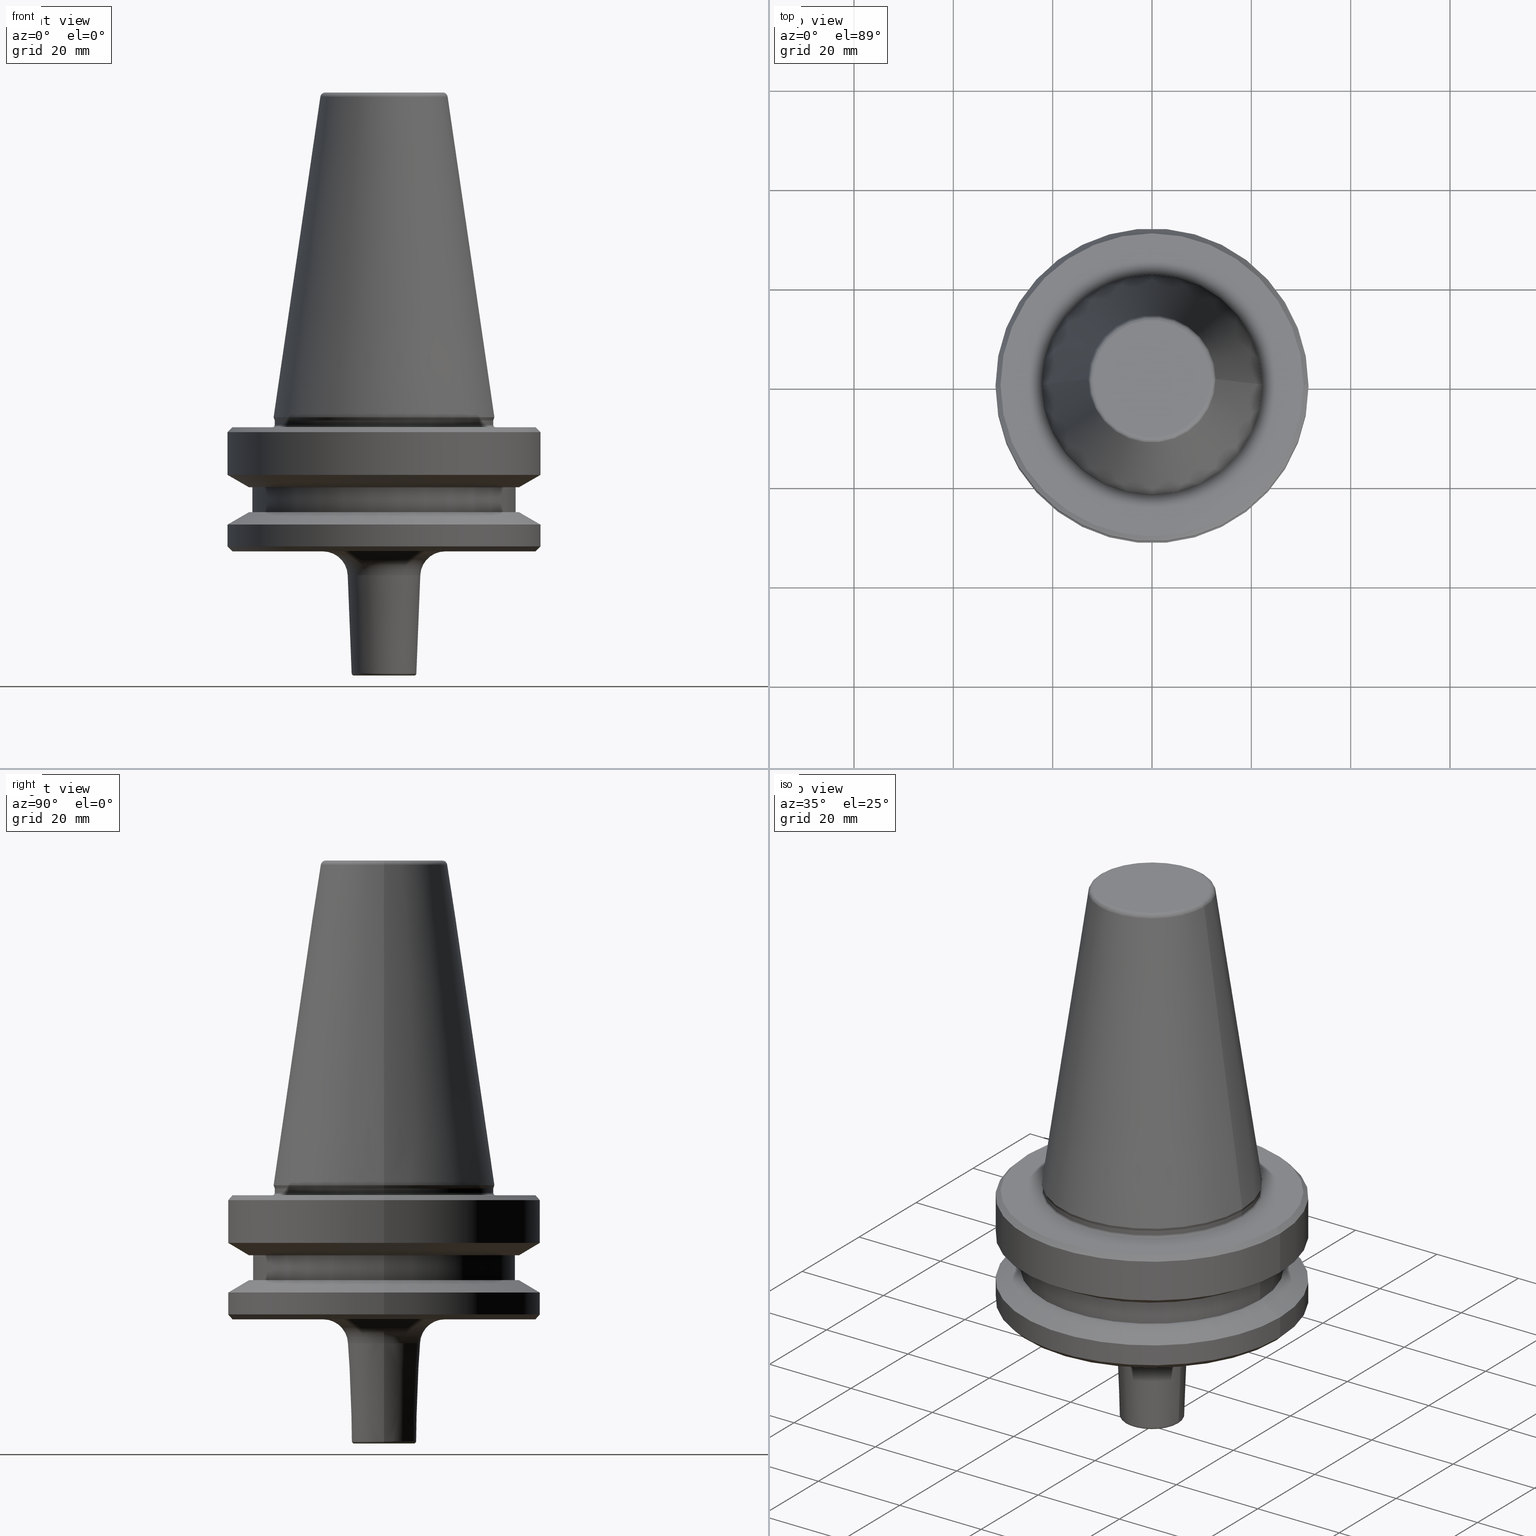
[diagram: canonical four-view strip — front | top / right | iso, engineering-drawing reading convention]
A machine part, canonical four-view strip (front | top / right | iso — engineering-drawing reading convention). The complete STEP part file that produces these views, byte-faithful:
ISO-10303-21;
HEADER;
FILE_DESCRIPTION (( 'STEP AP203' ),
    '1' );
FILE_NAME ('BT40 MCA08 025 AD+B-2.5G 25000 SL.STEP',
    '2019-05-24T09:43:43',
    ( '' ),
    ( '' ),
    'SwSTEP 2.0',
    'SolidWorks 2014',
    '' );
FILE_SCHEMA (( 'CONFIG_CONTROL_DESIGN' ));
ENDSEC;

DATA;
#1 = ORIENTED_EDGE ( 'NONE', *, *, #921, .T. ) ;
#2 = CIRCLE ( 'NONE', #910, 31.50000000000008500 ) ;
#3 = AXIS2_PLACEMENT_3D ( 'NONE', #16, #576, #99 ) ;
#4 = ORIENTED_EDGE ( 'NONE', *, *, #969, .T. ) ;
#5 = TOROIDAL_SURFACE ( 'NONE', #225, 22.49999999999996400, 0.4999999999999449300 ) ;
#6 = APPROVAL ( #360, 'UNSPECIFIED' ) ;
#7 = CARTESIAN_POINT ( 'NONE',  ( -31.50000000000008500, 0.0000000000000000000, -87.00014200631733300 ) ) ;
#8 = AXIS2_PLACEMENT_3D ( 'NONE', #582, #107, #659 ) ;
#9 = LINE ( 'NONE', #818, #620 ) ;
#10 = ADVANCED_FACE ( 'NONE', ( #871, #550 ), #719, .F. ) ;
#11 = CARTESIAN_POINT ( 'NONE',  ( 0.0000000000000000000, 0.0000000000000000000, -4.440892098500626200E-013 ) ) ;
#12 = VERTEX_POINT ( 'NONE', #167 ) ;
#13 = CARTESIAN_POINT ( 'NONE',  ( 0.0000000000000000000, 0.0000000000000000000, -97.40000000000807700 ) ) ;
#14 = AXIS2_PLACEMENT_3D ( 'NONE', #487, #259, #87 ) ;
#15 = ORIENTED_EDGE ( 'NONE', *, *, #879, .T. ) ;
#16 = CARTESIAN_POINT ( 'NONE',  ( 0.0000000000000000000, 0.0000000000000000000, -67.40000000000034700 ) ) ;
#17 = DIRECTION ( 'NONE',  ( -0.0000000000000000000, -0.0000000000000000000, 1.000000000000000000 ) ) ;
#18 = CARTESIAN_POINT ( 'NONE',  ( 0.0000000000000000000, 0.0000000000000000000, -97.20015980826372000 ) ) ;
#19 = VERTEX_POINT ( 'NONE', #71 ) ;
#20 = DIRECTION ( 'NONE',  ( -1.000000000000000000, 0.0000000000000000000, -0.0000000000000000000 ) ) ;
#21 = CARTESIAN_POINT ( 'NONE',  ( 0.0000000000000000000, 0.0000000000000000000, -79.50000000000012800 ) ) ;
#22 = ORIENTED_EDGE ( 'NONE', *, *, #1005, .F. ) ;
#23 = DIRECTION ( 'NONE',  ( 1.000000000000000000, 0.0000000000000000000, 0.0000000000000000000 ) ) ;
#24 = TOROIDAL_SURFACE ( 'NONE', #162, 22.40000000000019800, 0.4000000000001546800 ) ;
#25 = ADVANCED_FACE ( 'NONE', ( #729 ), #927, .T. ) ;
#26 = DIRECTION ( 'NONE',  ( -0.0000000000000000000, -0.0000000000000000000, 1.000000000000000000 ) ) ;
#27 = APPLICATION_PROTOCOL_DEFINITION ( 'international standard', 'config_control_design', 1994, #110 ) ;
#28 = CARTESIAN_POINT ( 'NONE',  ( -26.50000000000019200, 3.245314017740509400E-015, 6.357346922996331500 ) ) ;
#29 = ORIENTED_EDGE ( 'NONE', *, *, #83, .F. ) ;
#30 = DIRECTION ( 'NONE',  ( 1.224646799147353200E-016, 1.000000000000000000, 0.0000000000000000000 ) ) ;
#31 = DATE_TIME_ROLE ( 'creation_date' ) ;
#32 = DIRECTION ( 'NONE',  ( -0.0000000000000000000, -0.0000000000000000000, 1.000000000000000000 ) ) ;
#33 = DIRECTION ( 'NONE',  ( -0.0000000000000000000, -0.0000000000000000000, 1.000000000000000000 ) ) ;
#34 = ORIENTED_EDGE ( 'NONE', *, *, #941, .T. ) ;
#35 = TOROIDAL_SURFACE ( 'NONE', #982, 11.82266927716813000, 0.9999999999999696900 ) ;
#36 = ORIENTED_EDGE ( 'NONE', *, *, #962, .F. ) ;
#37 = CONICAL_SURFACE ( 'NONE', #14, 31.50000000000008500, 1.047197551196587000 ) ;
#38 = VERTEX_POINT ( 'NONE', #548 ) ;
#39 = AXIS2_PLACEMENT_3D ( 'NONE', #11, #570, #89 ) ;
#40 = FACE_OUTER_BOUND ( 'NONE', #201, .T. ) ;
#41 = CARTESIAN_POINT ( 'NONE',  ( 22.00000000000002100, 0.0000000000000000000, -66.08871321165987900 ) ) ;
#42 = ADVANCED_FACE ( 'NONE', ( #100 ), #132, .T. ) ;
#43 = CC_DESIGN_DATE_AND_TIME_ASSIGNMENT ( #131, #827, ( #63 ) ) ;
#44 = ORIENTED_EDGE ( 'NONE', *, *, #798, .F. ) ;
#45 = CARTESIAN_POINT ( 'NONE',  ( 12.81220206925736900, 1.569042225414513200E-015, -0.8556918111122247000 ) ) ;
#46 = CC_DESIGN_PERSON_AND_ORGANIZATION_ASSIGNMENT ( #285, #280, ( #63 ) ) ;
#47 = FACE_BOUND ( 'NONE', #180, .T. ) ;
#48 = DIRECTION ( 'NONE',  ( -0.0000000000000000000, -0.0000000000000000000, 1.000000000000000000 ) ) ;
#49 = ORIENTED_EDGE ( 'NONE', *, *, #327, .F. ) ;
#50 = CIRCLE ( 'NONE', #194, 31.50000000000008500 ) ;
#51 = AXIS2_PLACEMENT_3D ( 'NONE', #692, #618, #638 ) ;
#52 = ORIENTED_EDGE ( 'NONE', *, *, #930, .F. ) ;
#53 = AXIS2_PLACEMENT_3D ( 'NONE', #887, #972, #330 ) ;
#54 = DIRECTION ( 'NONE',  ( 1.000000000000000000, 0.0000000000000000000, 0.0000000000000000000 ) ) ;
#55 = CIRCLE ( 'NONE', #542, 26.50000000000019200 ) ;
#56 = COORDINATED_UNIVERSAL_TIME_OFFSET ( 5, 30, .AHEAD. ) ;
#57 = PRODUCT_DEFINITION_SHAPE ( 'NONE', 'NONE',  #755 ) ;
#58 = ORIENTED_EDGE ( 'NONE', *, *, #598, .T. ) ;
#59 = FACE_OUTER_BOUND ( 'NONE', #150, .T. ) ;
#60 = VERTEX_POINT ( 'NONE', #187 ) ;
#61 = CARTESIAN_POINT ( 'NONE',  ( 22.00000000000002100, 0.0000000000000000000, 6.357346922996331500 ) ) ;
#62 = DIRECTION ( 'NONE',  ( 1.000000000000000000, 0.0000000000000000000, 0.0000000000000000000 ) ) ;
#63 = SECURITY_CLASSIFICATION ( '', '', #745 ) ;
#64 = AXIS2_PLACEMENT_3D ( 'NONE', #202, #746, #283 ) ;
#65 = ORIENTED_EDGE ( 'NONE', *, *, #385, .F. ) ;
#66 = CARTESIAN_POINT ( 'NONE',  ( 0.0000000000000000000, 0.0000000000000000000, -68.40000000000046000 ) ) ;
#67 = AXIS2_PLACEMENT_3D ( 'NONE', #333, #889, #410 ) ;
#68 = VECTOR ( 'NONE', #1004, 1000.000000000000000 ) ;
#69 = CARTESIAN_POINT ( 'NONE',  ( 31.50000000000008500, 0.0000000000000000000, 6.357346922996331500 ) ) ;
#70 = CONICAL_SURFACE ( 'NONE', #1017, 7.307993607669765800, 0.03997868712328969000 ) ;
#71 = CARTESIAN_POINT ( 'NONE',  ( 30.49999999999241900, 0.0000000000000000000, -92.40000000000803500 ) ) ;
#72 = ADVANCED_FACE ( 'NONE', ( #958 ), #70, .T. ) ;
#73 = CARTESIAN_POINT ( 'NONE',  ( -12.30399840127871500, 1.506805225884012900E-015, -97.40000000000807700 ) ) ;
#74 = AXIS2_PLACEMENT_3D ( 'NONE', #172, #714, #256 ) ;
#75 = DIRECTION ( 'NONE',  ( 0.0000000000000000000, 0.0000000000000000000, -1.000000000000000000 ) ) ;
#76 = CARTESIAN_POINT ( 'NONE',  ( 0.0000000000000000000, 0.0000000000000000000, -91.40000000000037500 ) ) ;
#77 = ORIENTED_EDGE ( 'NONE', *, *, #974, .T. ) ;
#78 = LINE ( 'NONE', #318, #686 ) ;
#79 = DATE_AND_TIME ( #297, #510 ) ;
#80 = CC_DESIGN_PERSON_AND_ORGANIZATION_ASSIGNMENT ( #480, #200, ( #163 ) ) ;
#81 = ORIENTED_EDGE ( 'NONE', *, *, #398, .T. ) ;
#82 = VERTEX_POINT ( 'NONE', #534 ) ;
#83 = EDGE_CURVE ( 'NONE', #19, #1002, #702, .T. ) ;
#84 = AXIS2_PLACEMENT_3D ( 'NONE', #306, #861, #390 ) ;
#85 = ORIENTED_EDGE ( 'NONE', *, *, #706, .T. ) ;
#86 = AXIS2_PLACEMENT_3D ( 'NONE', #1012, #599, #125 ) ;
#87 = DIRECTION ( 'NONE',  ( -1.000000000000000000, 0.0000000000000000000, 0.0000000000000000000 ) ) ;
#88 = CARTESIAN_POINT ( 'NONE',  ( 0.0000000000000000000, 0.0000000000000000000, -79.50000000000012800 ) ) ;
#89 = DIRECTION ( 'NONE',  ( 1.000000000000000000, 0.0000000000000000000, 0.0000000000000000000 ) ) ;
#90 = CC_DESIGN_PERSON_AND_ORGANIZATION_ASSIGNMENT ( #687, #666, ( #163 ) ) ;
#91 = AXIS2_PLACEMENT_3D ( 'NONE', #947, #464, #1031 ) ;
#92 = CARTESIAN_POINT ( 'NONE',  ( 0.0000000000000000000, 0.0000000000000000000, -1.000000000000334000 ) ) ;
#93 = CIRCLE ( 'NONE', #8, 0.4999999999996951300 ) ;
#94 = CIRCLE ( 'NONE', #444, 6.519200639233008400 ) ;
#95 = ORIENTED_EDGE ( 'NONE', *, *, #962, .T. ) ;
#96 = CC_DESIGN_APPROVAL ( #155, ( #163 ) ) ;
#97 = CARTESIAN_POINT ( 'NONE',  ( 11.82266927716813000, 0.0000000000000000000, -4.440892098500626200E-013 ) ) ;
#98 = CALENDAR_DATE ( 2019, 24, 5 ) ;
#99 = DIRECTION ( 'NONE',  ( 1.000000000000000000, 0.0000000000000000000, 0.0000000000000000000 ) ) ;
#100 = FACE_OUTER_BOUND ( 'NONE', #446, .T. ) ;
#101 = AXIS2_PLACEMENT_3D ( 'NONE', #106, #658, #428 ) ;
#102 = VECTOR ( 'NONE', #485, 1000.000000000000000 ) ;
#103 = CARTESIAN_POINT ( 'NONE',  ( 27.16962701892256100, 3.592478546794633900E-015, -84.50000000000068200 ) ) ;
#104 = DIRECTION ( 'NONE',  ( 1.000000000000000000, 0.0000000000000000000, 0.0000000000000000000 ) ) ;
#105 = DIRECTION ( 'NONE',  ( 1.000000000000000000, 0.0000000000000000000, 0.0000000000000000000 ) ) ;
#106 = CARTESIAN_POINT ( 'NONE',  ( 0.0000000000000000000, 0.0000000000000000000, -116.9000000000083900 ) ) ;
#107 = DIRECTION ( 'NONE',  ( 0.0000000000000000000, -1.000000000000000000, 0.0000000000000000000 ) ) ;
#108 = AXIS2_PLACEMENT_3D ( 'NONE', #848, #229, #300 ) ;
#109 = CARTESIAN_POINT ( 'NONE',  ( -31.50000000000008500, 3.857637417314172900E-015, -76.99985799368391800 ) ) ;
#110 = APPLICATION_CONTEXT ( 'configuration controlled 3d designs of mechanical parts and assemblies' ) ;
#111 = DIRECTION ( 'NONE',  ( 1.000000000000000000, 0.0000000000000000000, 0.0000000000000000000 ) ) ;
#112 = CARTESIAN_POINT ( 'NONE',  ( 0.0000000000000000000, 0.0000000000000000000, -0.8556918111122247000 ) ) ;
#113 = ORIENTED_EDGE ( 'NONE', *, *, #124, .T. ) ;
#114 = VECTOR ( 'NONE', #703, 1000.000000000000000 ) ;
#115 = PERSON_AND_ORGANIZATION ( #690, #1022 ) ;
#116 = APPROVAL_ROLE ( '' ) ;
#117 = DIRECTION ( 'NONE',  ( 0.0000000000000000000, 0.0000000000000000000, -1.000000000000000000 ) ) ;
#118 = EDGE_CURVE ( 'NONE', #234, #850, #341, .T. ) ;
#119 = ORIENTED_EDGE ( 'NONE', *, *, #466, .F. ) ;
#120 = EDGE_CURVE ( 'NONE', #865, #883, #316, .T. ) ;
#121 = ADVANCED_FACE ( 'NONE', ( #494 ), #657, .T. ) ;
#122 = ORIENTED_EDGE ( 'NONE', *, *, #873, .F. ) ;
#123 = EDGE_LOOP ( 'NONE', ( #432, #95, #568, #65 ) ) ;
#124 = EDGE_CURVE ( 'NONE', #287, #870, #874, .T. ) ;
#125 = DIRECTION ( 'NONE',  ( 1.000000000000000000, 0.0000000000000000000, 0.0000000000000000000 ) ) ;
#126 = LINE ( 'NONE', #430, #697 ) ;
#127 = ORIENTED_EDGE ( 'NONE', *, *, #986, .T. ) ;
#128 = CIRCLE ( 'NONE', #531, 7.307993607669765800 ) ;
#129 = ORIENTED_EDGE ( 'NONE', *, *, #1052, .F. ) ;
#130 = DIRECTION ( 'NONE',  ( 0.1443081888881795900, 1.767265616126607700E-017, -0.9895327920891826600 ) ) ;
#131 = DATE_AND_TIME ( #670, #882 ) ;
#132 = CYLINDRICAL_SURFACE ( 'NONE', #970, 22.00000000000002100 ) ;
#133 = FACE_OUTER_BOUND ( 'NONE', #713, .T. ) ;
#134 = EDGE_CURVE ( 'NONE', #1002, #865, #50, .T. ) ;
#135 = DIRECTION ( 'NONE',  ( -1.000000000000000000, 1.224646799147353500E-016, 0.0000000000000000000 ) ) ;
#136 = ADVANCED_FACE ( 'NONE', ( #271 ), #843, .T. ) ;
#137 = AXIS2_PLACEMENT_3D ( 'NONE', #457, #382, #770 ) ;
#138 = DIRECTION ( 'NONE',  ( 1.000000000000000000, 0.0000000000000000000, 0.0000000000000000000 ) ) ;
#139 = PERSON_AND_ORGANIZATION ( #690, #1022 ) ;
#140 = ORIENTED_EDGE ( 'NONE', *, *, #556, .F. ) ;
#141 = VERTEX_POINT ( 'NONE', #964 ) ;
#142 = DIRECTION ( 'NONE',  ( -0.0000000000000000000, -0.0000000000000000000, 1.000000000000000000 ) ) ;
#143 = DIRECTION ( 'NONE',  ( 1.000000000000000000, 0.0000000000000000000, 0.0000000000000000000 ) ) ;
#144 = DIRECTION ( 'NONE',  ( 0.7071067811865487900, 0.0000000000000000000, 0.7071067811865463500 ) ) ;
#145 = AXIS2_PLACEMENT_3D ( 'NONE', #208, #750, #288 ) ;
#146 = EDGE_LOOP ( 'NONE', ( #370, #615, #938, #632 ) ) ;
#147 = DIRECTION ( 'NONE',  ( -0.0000000000000000000, -0.0000000000000000000, 1.000000000000000000 ) ) ;
#148 = CONICAL_SURFACE ( 'NONE', #294, 31.50000000000008500, 1.047197551196597400 ) ;
#149 = EDGE_CURVE ( 'NONE', #891, #623, #292, .T. ) ;
#150 = EDGE_LOOP ( 'NONE', ( #307, #842, #853, #833 ) ) ;
#151 = CARTESIAN_POINT ( 'NONE',  ( 0.0000000000000000000, 0.0000000000000000000, -0.8556918111122247000 ) ) ;
#152 = CIRCLE ( 'NONE', #218, 30.49999999999997200 ) ;
#153 = VERTEX_POINT ( 'NONE', #877 ) ;
#154 = ORIENTED_EDGE ( 'NONE', *, *, #862, .T. ) ;
#155 = APPROVAL ( #589, 'UNSPECIFIED' ) ;
#156 = ORIENTED_EDGE ( 'NONE', *, *, #762, .F. ) ;
#157 = CARTESIAN_POINT ( 'NONE',  ( 31.50000000000008500, 0.0000000000000000000, -76.99985799368391800 ) ) ;
#158 = AXIS2_PLACEMENT_3D ( 'NONE', #937, #610, #143 ) ;
#159 = CONICAL_SURFACE ( 'NONE', #137, 31.50000000000008500, 0.7853981633974500600 ) ;
#160 = DIRECTION ( 'NONE',  ( 1.000000000000000000, 0.0000000000000000000, 0.0000000000000000000 ) ) ;
#161 = DIRECTION ( 'NONE',  ( -1.000000000000000000, 1.224646799147353500E-016, 0.0000000000000000000 ) ) ;
#162 = AXIS2_PLACEMENT_3D ( 'NONE', #293, #845, #378 ) ;
#163 = PRODUCT_DEFINITION_FORMATION_WITH_SPECIFIED_SOURCE ( 'ANY', '', #619, .NOT_KNOWN. ) ;
#164 = COORDINATED_UNIVERSAL_TIME_OFFSET ( 5, 30, .AHEAD. ) ;
#165 = AXIS2_PLACEMENT_3D ( 'NONE', #509, #32, #590 ) ;
#166 = ORIENTED_EDGE ( 'NONE', *, *, #759, .F. ) ;
#167 = CARTESIAN_POINT ( 'NONE',  ( -12.30399840127871500, 1.506805225884012900E-015, -92.40000000000807700 ) ) ;
#168 = AXIS2_PLACEMENT_3D ( 'NONE', #479, #957, #766 ) ;
#169 = ADVANCED_FACE ( 'NONE', ( #247 ), #24, .F. ) ;
#170 = ORIENTED_EDGE ( 'NONE', *, *, #400, .F. ) ;
#171 = EDGE_CURVE ( 'NONE', #751, #883, #451, .T. ) ;
#172 = CARTESIAN_POINT ( 'NONE',  ( 0.0000000000000000000, 0.0000000000000000000, -84.50000000000068200 ) ) ;
#173 = AXIS2_PLACEMENT_3D ( 'NONE', #907, #417, #990 ) ;
#174 = CARTESIAN_POINT ( 'NONE',  ( 31.50000000000008500, 0.0000000000000000000, -91.40000000000037500 ) ) ;
#175 = VECTOR ( 'NONE', #192, 1000.000000000000000 ) ;
#176 = AXIS2_PLACEMENT_3D ( 'NONE', #720, #564, #980 ) ;
#177 = FACE_OUTER_BOUND ( 'NONE', #678, .T. ) ;
#178 = ORIENTED_EDGE ( 'NONE', *, *, #396, .F. ) ;
#179 = TOROIDAL_SURFACE ( 'NONE', #86, 6.019600159872415400, 0.4999999999996970800 ) ;
#180 = EDGE_LOOP ( 'NONE', ( #389, #477 ) ) ;
#181 = DIRECTION ( 'NONE',  ( 1.000000000000000000, 0.0000000000000000000, 0.0000000000000000000 ) ) ;
#182 = FACE_OUTER_BOUND ( 'NONE', #1048, .T. ) ;
#183 = DIRECTION ( 'NONE',  ( 1.000000000000000000, 0.0000000000000000000, 0.0000000000000000000 ) ) ;
#184 = AXIS2_PLACEMENT_3D ( 'NONE', #852, #383, #943 ) ;
#185 = AXIS2_PLACEMENT_3D ( 'NONE', #789, #319, #876 ) ;
#186 = CARTESIAN_POINT ( 'NONE',  ( 0.0000000000000000000, 0.0000000000000000000, -79.50000000000012800 ) ) ;
#187 = CARTESIAN_POINT ( 'NONE',  ( 26.50000000000019200, 0.0000000000000000000, -79.50000000000012800 ) ) ;
#188 = CARTESIAN_POINT ( 'NONE',  ( -31.50000000000008500, 3.857637417314172900E-015, -87.00014200631733300 ) ) ;
#189 = DIRECTION ( 'NONE',  ( 0.0000000000000000000, 0.0000000000000000000, -1.000000000000000000 ) ) ;
#190 = DIRECTION ( 'NONE',  ( 0.8660254037844383700, 0.0000000000000000000, 0.5000000000000003300 ) ) ;
#191 = CARTESIAN_POINT ( 'NONE',  ( 0.0000000000000000000, 0.0000000000000000000, -4.440892098500626200E-013 ) ) ;
#192 = DIRECTION ( 'NONE',  ( -0.0000000000000000000, -0.0000000000000000000, 1.000000000000000000 ) ) ;
#193 = CARTESIAN_POINT ( 'NONE',  ( -30.49999999999241900, 3.796405077356336000E-015, -92.40000000000803500 ) ) ;
#194 = AXIS2_PLACEMENT_3D ( 'NONE', #707, #248, #791 ) ;
#195 = DIRECTION ( 'NONE',  ( -0.0000000000000000000, -0.0000000000000000000, 1.000000000000000000 ) ) ;
#196 = CARTESIAN_POINT ( 'NONE',  ( 0.0000000000000000000, 0.0000000000000000000, -68.40000000000046000 ) ) ;
#197 = DIRECTION ( 'NONE',  ( 0.0000000000000000000, 0.0000000000000000000, 1.000000000000000000 ) ) ;
#198 = CARTESIAN_POINT ( 'NONE',  ( -12.81220206925736900, 0.0000000000000000000, -0.8556918111122247000 ) ) ;
#199 = DIRECTION ( 'NONE',  ( 1.000000000000000000, 0.0000000000000000000, 0.0000000000000000000 ) ) ;
#200 = PERSON_AND_ORGANIZATION_ROLE ( 'design_supplier' ) ;
#201 = EDGE_LOOP ( 'NONE', ( #49, #1, #725, #840 ) ) ;
#202 = CARTESIAN_POINT ( 'NONE',  ( 0.0000000000000000000, 0.0000000000000000000, -76.99985799368391800 ) ) ;
#203 = CARTESIAN_POINT ( 'NONE',  ( 30.49999999999997200, 3.735172737399423600E-015, -67.40000000000034700 ) ) ;
#204 = MANIFOLD_SOLID_BREP ( 'Revolve1', #708 ) ;
#205 = TOROIDAL_SURFACE ( 'NONE', #864, 22.49999999999996400, 0.4999999999999449300 ) ;
#206 = LINE ( 'NONE', #109, #386 ) ;
#207 = EDGE_LOOP ( 'NONE', ( #245, #122, #906, #898 ) ) ;
#208 = CARTESIAN_POINT ( 'NONE',  ( 0.0000000000000000000, 0.0000000000000000000, -92.40000000000807700 ) ) ;
#209 = VECTOR ( 'NONE', #823, 1000.000000000000000 ) ;
#210 = AXIS2_PLACEMENT_3D ( 'NONE', #724, #563, #804 ) ;
#211 = EDGE_LOOP ( 'NONE', ( #878, #170 ) ) ;
#212 = EDGE_CURVE ( 'NONE', #727, #536, #683, .T. ) ;
#213 = TOROIDAL_SURFACE ( 'NONE', #158, 12.30399840127871500, 5.000000000000002700 ) ;
#214 = CC_DESIGN_DATE_AND_TIME_ASSIGNMENT ( #323, #31, ( #755 ) ) ;
#215 = VERTEX_POINT ( 'NONE', #227 ) ;
#216 = AXIS2_PLACEMENT_3D ( 'NONE', #572, #880, #1040 ) ;
#217 = DIRECTION ( 'NONE',  ( -0.0000000000000000000, -0.0000000000000000000, 1.000000000000000000 ) ) ;
#218 = AXIS2_PLACEMENT_3D ( 'NONE', #344, #899, #415 ) ;
#219 = CARTESIAN_POINT ( 'NONE',  ( 0.0000000000000000000, 0.0000000000000000000, -66.08871321165987900 ) ) ;
#220 = DESIGN_CONTEXT ( 'detailed design', #356, 'design' ) ;
#221 = VERTEX_POINT ( 'NONE', #298 ) ;
#222 = AXIS2_PLACEMENT_3D ( 'NONE', #1025, #533, #54 ) ;
#223 = EDGE_LOOP ( 'NONE', ( #369, #303, #744, #81 ) ) ;
#224 = LINE ( 'NONE', #815, #473 ) ;
#225 = AXIS2_PLACEMENT_3D ( 'NONE', #586, #999, #111 ) ;
#226 = ORIENTED_EDGE ( 'NONE', *, *, #120, .T. ) ;
#227 = CARTESIAN_POINT ( 'NONE',  ( -26.50000000000019200, 3.245314017740509400E-015, -84.50000000000068200 ) ) ;
#228 = AXIS2_PLACEMENT_3D ( 'NONE', #391, #579, #651 ) ;
#229 = DIRECTION ( 'NONE',  ( -0.0000000000000000000, -0.0000000000000000000, 1.000000000000000000 ) ) ;
#230 = ORIENTED_EDGE ( 'NONE', *, *, #788, .T. ) ;
#231 = EDGE_CURVE ( 'NONE', #221, #299, #628, .T. ) ;
#232 = FACE_OUTER_BOUND ( 'NONE', #324, .T. ) ;
#233 = CARTESIAN_POINT ( 'NONE',  ( 0.0000000000000000000, 0.0000000000000000000, -66.08871321165987900 ) ) ;
#234 = VERTEX_POINT ( 'NONE', #940 ) ;
#235 = FACE_OUTER_BOUND ( 'NONE', #146, .T. ) ;
#236 = AXIS2_PLACEMENT_3D ( 'NONE', #233, #773, #302 ) ;
#237 = CARTESIAN_POINT ( 'NONE',  ( 0.0000000000000000000, 0.0000000000000000000, -65.40000000000057400 ) ) ;
#238 = CYLINDRICAL_SURFACE ( 'NONE', #312, 31.50000000000008500 ) ;
#239 = AXIS2_PLACEMENT_3D ( 'NONE', #357, #117, #361 ) ;
#240 = DIRECTION ( 'NONE',  ( 1.000000000000000000, 0.0000000000000000000, 0.0000000000000000000 ) ) ;
#241 = ADVANCED_FACE ( 'NONE', ( #1049 ), #455, .F. ) ;
#242 = CARTESIAN_POINT ( 'NONE',  ( 0.0000000000000000000, 0.0000000000000000000, -76.99985799368391800 ) ) ;
#243 = ORIENTED_EDGE ( 'NONE', *, *, #149, .F. ) ;
#244 = EDGE_CURVE ( 'NONE', #748, #60, #224, .T. ) ;
#245 = ORIENTED_EDGE ( 'NONE', *, *, #893, .F. ) ;
#246 = ORIENTED_EDGE ( 'NONE', *, *, #892, .F. ) ;
#247 = FACE_OUTER_BOUND ( 'NONE', #207, .T. ) ;
#248 = DIRECTION ( 'NONE',  ( -0.0000000000000000000, -0.0000000000000000000, 1.000000000000000000 ) ) ;
#249 = EDGE_LOOP ( 'NONE', ( #976, #718, #1041, #156 ) ) ;
#250 = ORIENTED_EDGE ( 'NONE', *, *, #484, .T. ) ;
#251 = TOROIDAL_SURFACE ( 'NONE', #946, 12.30399840127871500, 5.000000000000002700 ) ;
#252 = AXIS2_PLACEMENT_3D ( 'NONE', #472, #1045, #553 ) ;
#253 = EDGE_LOOP ( 'NONE', ( #560, #936, #314, #486 ) ) ;
#254 = CIRCLE ( 'NONE', #3, 30.49999999999997200 ) ;
#255 = ORIENTED_EDGE ( 'NONE', *, *, #918, .T. ) ;
#256 = DIRECTION ( 'NONE',  ( 1.000000000000000000, 0.0000000000000000000, 0.0000000000000000000 ) ) ;
#257 = FACE_OUTER_BOUND ( 'NONE', #621, .T. ) ;
#258 = AXIS2_PLACEMENT_3D ( 'NONE', #196, #738, #276 ) ;
#259 = DIRECTION ( 'NONE',  ( 0.0000000000000000000, 0.0000000000000000000, -1.000000000000000000 ) ) ;
#260 = VERTEX_POINT ( 'NONE', #655 ) ;
#261 = DIRECTION ( 'NONE',  ( 1.000000000000000000, 0.0000000000000000000, 0.0000000000000000000 ) ) ;
#262 = DIRECTION ( 'NONE',  ( -0.0000000000000000000, -0.0000000000000000000, 1.000000000000000000 ) ) ;
#263 = DIRECTION ( 'NONE',  ( -0.0000000000000000000, -0.0000000000000000000, 1.000000000000000000 ) ) ;
#264 = AXIS2_PLACEMENT_3D ( 'NONE', #888, #408, #973 ) ;
#265 = VECTOR ( 'NONE', #33, 1000.000000000000000 ) ;
#266 = ORIENTED_EDGE ( 'NONE', *, *, #873, .T. ) ;
#267 = DIRECTION ( 'NONE',  ( 1.000000000000000000, 0.0000000000000000000, 0.0000000000000000000 ) ) ;
#268 = EDGE_CURVE ( 'NONE', #1011, #645, #675, .T. ) ;
#269 = ADVANCED_FACE ( 'NONE', ( #819, #607 ), #585, .T. ) ;
#270 = CARTESIAN_POINT ( 'NONE',  ( -22.00000000000002100, 2.724839128102860200E-015, -66.90000000000040400 ) ) ;
#271 = FACE_OUTER_BOUND ( 'NONE', #253, .T. ) ;
#272 = DIRECTION ( 'NONE',  ( -1.000000000000000000, 0.0000000000000000000, -0.0000000000000000000 ) ) ;
#273 = CARTESIAN_POINT ( 'NONE',  ( -27.16962701892322600, 3.592478546794674900E-015, -79.50000000000012800 ) ) ;
#274 = AXIS2_PLACEMENT_3D ( 'NONE', #811, #189, #420 ) ;
#275 = DIRECTION ( 'NONE',  ( 1.000000000000000000, 0.0000000000000000000, 0.0000000000000000000 ) ) ;
#276 = DIRECTION ( 'NONE',  ( 1.000000000000000000, 0.0000000000000000000, 0.0000000000000000000 ) ) ;
#277 = MECHANICAL_CONTEXT ( 'NONE', #110, 'mechanical' ) ;
#278 = DIRECTION ( 'NONE',  ( 1.000000000000000000, 0.0000000000000000000, 0.0000000000000000000 ) ) ;
#279 = ORIENTED_EDGE ( 'NONE', *, *, #396, .T. ) ;
#280 = PERSON_AND_ORGANIZATION_ROLE ( 'classification_officer' ) ;
#281 = ADVANCED_FACE ( 'NONE', ( #465 ), #442, .T. ) ;
#282 = VECTOR ( 'NONE', #630, 1000.000000000000000 ) ;
#283 = DIRECTION ( 'NONE',  ( 1.000000000000000000, 0.0000000000000000000, 0.0000000000000000000 ) ) ;
#284 = EDGE_CURVE ( 'NONE', #623, #753, #639, .T. ) ;
#285 = PERSON_AND_ORGANIZATION ( #690, #1022 ) ;
#286 = ORIENTED_EDGE ( 'NONE', *, *, #1018, .T. ) ;
#287 = VERTEX_POINT ( 'NONE', #347 ) ;
#288 = DIRECTION ( 'NONE',  ( 1.000000000000000000, 0.0000000000000000000, 0.0000000000000000000 ) ) ;
#289 = ORIENTED_EDGE ( 'NONE', *, *, #901, .F. ) ;
#290 = FACE_OUTER_BOUND ( 'NONE', #358, .T. ) ;
#291 = ADVANCED_FACE ( 'NONE', ( #257 ), #409, .T. ) ;
#292 = CIRCLE ( 'NONE', #168, 0.4999999999999449300 ) ;
#293 = CARTESIAN_POINT ( 'NONE',  ( 0.0000000000000000000, 0.0000000000000000000, -66.08871321165987900 ) ) ;
#294 = AXIS2_PLACEMENT_3D ( 'NONE', #538, #463, #62 ) ;
#295 = CARTESIAN_POINT ( 'NONE',  ( 27.16962701892322600, 0.0000000000000000000, -79.50000000000012800 ) ) ;
#296 = LINE ( 'NONE', #963, #282 ) ;
#297 = CALENDAR_DATE ( 2019, 24, 5 ) ;
#298 = CARTESIAN_POINT ( 'NONE',  ( 22.22499999999993700, 0.0000000000000000000, -65.40000000000057400 ) ) ;
#299 = VERTEX_POINT ( 'NONE', #660 ) ;
#300 = DIRECTION ( 'NONE',  ( 1.000000000000000000, 0.0000000000000000000, 0.0000000000000000000 ) ) ;
#301 = DIRECTION ( 'NONE',  ( -0.0000000000000000000, -0.0000000000000000000, 1.000000000000000000 ) ) ;
#302 = DIRECTION ( 'NONE',  ( 1.000000000000000000, 0.0000000000000000000, 0.0000000000000000000 ) ) ;
#303 = ORIENTED_EDGE ( 'NONE', *, *, #706, .F. ) ;
#304 = CARTESIAN_POINT ( 'NONE',  ( 7.307993607669765800, 0.0000000000000000000, -97.20015980826372000 ) ) ;
#305 = AXIS2_PLACEMENT_3D ( 'NONE', #401, #425, #652 ) ;
#306 = CARTESIAN_POINT ( 'NONE',  ( 0.0000000000000000000, 0.0000000000000000000, -97.20015980826372000 ) ) ;
#307 = ORIENTED_EDGE ( 'NONE', *, *, #328, .T. ) ;
#308 = FACE_BOUND ( 'NONE', #483, .T. ) ;
#309 = LINE ( 'NONE', #993, #614 ) ;
#310 = ORIENTED_EDGE ( 'NONE', *, *, #327, .T. ) ;
#311 = DIRECTION ( 'NONE',  ( 1.000000000000000000, 0.0000000000000000000, 0.0000000000000000000 ) ) ;
#312 = AXIS2_PLACEMENT_3D ( 'NONE', #732, #195, #275 ) ;
#313 = DIRECTION ( 'NONE',  ( -0.0000000000000000000, -0.0000000000000000000, 1.000000000000000000 ) ) ;
#314 = ORIENTED_EDGE ( 'NONE', *, *, #855, .T. ) ;
#315 = LOCAL_TIME ( 15, 13, 43.00000000000000000, #523 ) ;
#316 = LINE ( 'NONE', #771, #900 ) ;
#317 = CYLINDRICAL_SURFACE ( 'NONE', #51, 31.50000000000008500 ) ;
#318 = CARTESIAN_POINT ( 'NONE',  ( -22.00000000000002100, 2.694222958124179600E-015, 6.357346922996331500 ) ) ;
#319 = DIRECTION ( 'NONE',  ( -0.0000000000000000000, -0.0000000000000000000, 1.000000000000000000 ) ) ;
#320 = DIRECTION ( 'NONE',  ( -1.000000000000000000, 0.0000000000000000000, 0.0000000000000000000 ) ) ;
#321 = ORIENTED_EDGE ( 'NONE', *, *, #244, .F. ) ;
#322 = LINE ( 'NONE', #203, #114 ) ;
#323 = DATE_AND_TIME ( #528, #741 ) ;
#324 = EDGE_LOOP ( 'NONE', ( #794, #885, #948, #544 ) ) ;
#325 = ADVANCED_FACE ( 'NONE', ( #40 ), #238, .T. ) ;
#326 = ORIENTED_EDGE ( 'NONE', *, *, #231, .T. ) ;
#327 = EDGE_CURVE ( 'NONE', #765, #1011, #9, .T. ) ;
#328 = EDGE_CURVE ( 'NONE', #653, #141, #835, .T. ) ;
#329 = ORIENTED_EDGE ( 'NONE', *, *, #484, .F. ) ;
#330 = DIRECTION ( 'NONE',  ( -1.000000000000000000, 0.0000000000000000000, 0.0000000000000000000 ) ) ;
#331 = EDGE_LOOP ( 'NONE', ( #787, #310, #782, #52 ) ) ;
#332 = ORIENTED_EDGE ( 'NONE', *, *, #83, .T. ) ;
#333 = CARTESIAN_POINT ( 'NONE',  ( -11.82266927716813000, 1.447859408766170200E-015, -1.000000000000334000 ) ) ;
#334 = CARTESIAN_POINT ( 'NONE',  ( 0.0000000000000000000, 0.0000000000000000000, -67.40000000000034700 ) ) ;
#335 = CIRCLE ( 'NONE', #252, 27.16962701892256100 ) ;
#336 = ORIENTED_EDGE ( 'NONE', *, *, #953, .T. ) ;
#337 = CIRCLE ( 'NONE', #345, 0.4000000000001502400 ) ;
#338 = ORIENTED_EDGE ( 'NONE', *, *, #918, .F. ) ;
#339 = PLANE ( 'NONE',  #654 ) ;
#340 = DIRECTION ( 'NONE',  ( -0.0000000000000000000, -0.0000000000000000000, 1.000000000000000000 ) ) ;
#341 = CIRCLE ( 'NONE', #184, 22.02412295168554100 ) ;
#342 = DIRECTION ( 'NONE',  ( 1.000000000000000000, 0.0000000000000000000, 0.0000000000000000000 ) ) ;
#343 = FACE_OUTER_BOUND ( 'NONE', #331, .T. ) ;
#344 = CARTESIAN_POINT ( 'NONE',  ( 0.0000000000000000000, 0.0000000000000000000, -67.40000000000034700 ) ) ;
#345 = AXIS2_PLACEMENT_3D ( 'NONE', #813, #348, #903 ) ;
#346 = DIRECTION ( 'NONE',  ( -0.0000000000000000000, -0.0000000000000000000, 1.000000000000000000 ) ) ;
#347 = CARTESIAN_POINT ( 'NONE',  ( -27.16962701892256100, 0.0000000000000000000, -84.50000000000068200 ) ) ;
#348 = DIRECTION ( 'NONE',  ( 0.0000000000000000000, -1.000000000000000000, 0.0000000000000000000 ) ) ;
#349 = ADVANCED_FACE ( 'NONE', ( #1037 ), #213, .F. ) ;
#350 = DIRECTION ( 'NONE',  ( 0.0000000000000000000, -1.000000000000000000, 0.0000000000000000000 ) ) ;
#351 = AXIS2_PLACEMENT_3D ( 'NONE', #1028, #372, #105 ) ;
#352 = DIRECTION ( 'NONE',  ( -0.0000000000000000000, -0.0000000000000000000, 1.000000000000000000 ) ) ;
#353 = APPROVAL_DATE_TIME ( #557, #695 ) ;
#354 = VERTEX_POINT ( 'NONE', #295 ) ;
#355 = DIRECTION ( 'NONE',  ( 1.000000000000000000, 0.0000000000000000000, 0.0000000000000000000 ) ) ;
#356 = APPLICATION_CONTEXT ( 'configuration controlled 3d designs of mechanical parts and assemblies' ) ;
#357 = CARTESIAN_POINT ( 'NONE',  ( 0.0000000000000000000, 0.0000000000000000000, -87.00014200631733300 ) ) ;
#358 = EDGE_LOOP ( 'NONE', ( #22, #381 ) ) ;
#359 = ADVANCED_FACE ( 'NONE', ( #182 ), #1015, .T. ) ;
#360 = APPROVAL_STATUS ( 'not_yet_approved' ) ;
#361 = DIRECTION ( 'NONE',  ( -1.000000000000000000, 0.0000000000000000000, 0.0000000000000000000 ) ) ;
#362 = ADVANCED_FACE ( 'NONE', ( #601 ), #159, .T. ) ;
#363 = DIRECTION ( 'NONE',  ( -0.0000000000000000000, -0.0000000000000000000, 1.000000000000000000 ) ) ;
#364 = CIRCLE ( 'NONE', #685, 26.50000000000019200 ) ;
#365 = ORIENTED_EDGE ( 'NONE', *, *, #859, .F. ) ;
#366 = CIRCLE ( 'NONE', #517, 5.000000000000004400 ) ;
#367 = AXIS2_PLACEMENT_3D ( 'NONE', #237, #147, #774 ) ;
#368 = ORIENTED_EDGE ( 'NONE', *, *, #795, .F. ) ;
#369 = ORIENTED_EDGE ( 'NONE', *, *, #944, .F. ) ;
#370 = ORIENTED_EDGE ( 'NONE', *, *, #941, .F. ) ;
#371 = FACE_OUTER_BOUND ( 'NONE', #521, .T. ) ;
#372 = DIRECTION ( 'NONE',  ( -0.0000000000000000000, -0.0000000000000000000, 1.000000000000000000 ) ) ;
#373 = CARTESIAN_POINT ( 'NONE',  ( -6.519200639233007500, 7.983718195836082100E-016, -116.9199840191828100 ) ) ;
#374 = AXIS2_PLACEMENT_3D ( 'NONE', #476, #1051, #555 ) ;
#375 = EDGE_CURVE ( 'NONE', #671, #979, #573, .T. ) ;
#376 = APPROVAL_PERSON_ORGANIZATION ( #584, #695, #1003 ) ;
#377 = ORIENTED_EDGE ( 'NONE', *, *, #1036, .T. ) ;
#378 = DIRECTION ( 'NONE',  ( 1.000000000000000000, 0.0000000000000000000, 0.0000000000000000000 ) ) ;
#379 = AXIS2_PLACEMENT_3D ( 'NONE', #834, #363, #920 ) ;
#380 = DIRECTION ( 'NONE',  ( 1.000000000000000000, 0.0000000000000000000, 0.0000000000000000000 ) ) ;
#381 = ORIENTED_EDGE ( 'NONE', *, *, #1036, .F. ) ;
#382 = DIRECTION ( 'NONE',  ( -0.0000000000000000000, -0.0000000000000000000, 1.000000000000000000 ) ) ;
#383 = DIRECTION ( 'NONE',  ( -0.0000000000000000000, -0.0000000000000000000, 1.000000000000000000 ) ) ;
#384 = LINE ( 'NONE', #656, #175 ) ;
#385 = EDGE_CURVE ( 'NONE', #38, #671, #392, .T. ) ;
#386 = VECTOR ( 'NONE', #422, 1000.000000000000100 ) ;
#387 = ORIENTED_EDGE ( 'NONE', *, *, #120, .F. ) ;
#388 = FACE_OUTER_BOUND ( 'NONE', #757, .T. ) ;
#389 = ORIENTED_EDGE ( 'NONE', *, *, #994, .F. ) ;
#390 = DIRECTION ( 'NONE',  ( 1.000000000000000000, 0.0000000000000000000, 0.0000000000000000000 ) ) ;
#391 = CARTESIAN_POINT ( 'NONE',  ( 0.0000000000000000000, 0.0000000000000000000, -65.40000000000057400 ) ) ;
#392 = LINE ( 'NONE', #61, #860 ) ;
#393 = DIRECTION ( 'NONE',  ( -0.0000000000000000000, -0.0000000000000000000, 1.000000000000000000 ) ) ;
#394 = DIRECTION ( 'NONE',  ( 0.0000000000000000000, 0.0000000000000000000, -1.000000000000000000 ) ) ;
#395 = DIRECTION ( 'NONE',  ( -0.0000000000000000000, -0.0000000000000000000, 1.000000000000000000 ) ) ;
#396 = EDGE_CURVE ( 'NONE', #234, #299, #783, .T. ) ;
#397 = ADVANCED_FACE ( 'NONE', ( #802 ), #730, .T. ) ;
#398 = EDGE_CURVE ( 'NONE', #260, #536, #960, .T. ) ;
#399 = CARTESIAN_POINT ( 'NONE',  ( 0.0000000000000000000, 0.0000000000000000000, -66.90000000000040400 ) ) ;
#400 = EDGE_CURVE ( 'NONE', #215, #748, #552, .T. ) ;
#401 = CARTESIAN_POINT ( 'NONE',  ( 0.0000000000000000000, 0.0000000000000000000, 6.357346922996331500 ) ) ;
#402 = ORIENTED_EDGE ( 'NONE', *, *, #118, .T. ) ;
#403 = FACE_OUTER_BOUND ( 'NONE', #945, .T. ) ;
#404 = CIRCLE ( 'NONE', #418, 0.4999999999996968500 ) ;
#405 = ORIENTED_EDGE ( 'NONE', *, *, #892, .T. ) ;
#406 = LINE ( 'NONE', #503, #209 ) ;
#407 = ORIENTED_EDGE ( 'NONE', *, *, #398, .F. ) ;
#408 = DIRECTION ( 'NONE',  ( -0.0000000000000000000, -0.0000000000000000000, 1.000000000000000000 ) ) ;
#409 = CONICAL_SURFACE ( 'NONE', #274, 30.49999999999997200, 0.7853981633974482800 ) ;
#410 = DIRECTION ( 'NONE',  ( -1.000000000000000000, 1.224646799147353000E-016, 0.0000000000000000000 ) ) ;
#411 = DIRECTION ( 'NONE',  ( -0.0000000000000000000, -0.0000000000000000000, 1.000000000000000000 ) ) ;
#412 = DIRECTION ( 'NONE',  ( 1.000000000000000000, 0.0000000000000000000, 0.0000000000000000000 ) ) ;
#413 = EDGE_LOOP ( 'NONE', ( #1033, #461, #617, #559 ) ) ;
#414 = ORIENTED_EDGE ( 'NONE', *, *, #1023, .T. ) ;
#415 = DIRECTION ( 'NONE',  ( 1.000000000000000000, 0.0000000000000000000, 0.0000000000000000000 ) ) ;
#416 = CARTESIAN_POINT ( 'NONE',  ( 0.0000000000000000000, 0.0000000000000000000, -66.90000000000040400 ) ) ;
#417 = DIRECTION ( 'NONE',  ( 0.0000000000000000000, -1.000000000000000000, 0.0000000000000000000 ) ) ;
#418 = AXIS2_PLACEMENT_3D ( 'NONE', #506, #30, #135 ) ;
#419 = DIRECTION ( 'NONE',  ( -0.0000000000000000000, -0.0000000000000000000, 1.000000000000000000 ) ) ;
#420 = DIRECTION ( 'NONE',  ( -1.000000000000000000, 0.0000000000000000000, 0.0000000000000000000 ) ) ;
#421 = EDGE_LOOP ( 'NONE', ( #450, #414, #332, #981 ) ) ;
#422 = DIRECTION ( 'NONE',  ( -0.8660254037844383700, 1.060575238724906500E-016, 0.5000000000000003300 ) ) ;
#423 = ADVANCED_FACE ( 'NONE', ( #343 ), #317, .T. ) ;
#424 = ORIENTED_EDGE ( 'NONE', *, *, #1052, .T. ) ;
#425 = DIRECTION ( 'NONE',  ( -0.0000000000000000000, -0.0000000000000000000, 1.000000000000000000 ) ) ;
#426 =( NAMED_UNIT ( * ) PLANE_ANGLE_UNIT ( ) SI_UNIT ( $, .RADIAN. ) );
#427 = VECTOR ( 'NONE', #530, 1000.000000000000000 ) ;
#428 = DIRECTION ( 'NONE',  ( 1.000000000000000000, 0.0000000000000000000, 0.0000000000000000000 ) ) ;
#429 = CARTESIAN_POINT ( 'NONE',  ( -22.40000000000019800, 2.743208830090095500E-015, -66.08871321165987900 ) ) ;
#430 = CARTESIAN_POINT ( 'NONE',  ( 31.50000000000008500, 3.857637417314172900E-015, -87.00014200631733300 ) ) ;
#431 = APPROVAL_STATUS ( 'not_yet_approved' ) ;
#432 = ORIENTED_EDGE ( 'NONE', *, *, #859, .T. ) ;
#433 = DIRECTION ( 'NONE',  ( -0.0000000000000000000, -0.0000000000000000000, 1.000000000000000000 ) ) ;
#434 = CARTESIAN_POINT ( 'NONE',  ( -30.49999999999997200, 0.0000000000000000000, -67.40000000000034700 ) ) ;
#435 = ORIENTED_EDGE ( 'NONE', *, *, #1005, .T. ) ;
#436 = CARTESIAN_POINT ( 'NONE',  ( 31.50000000000008500, 0.0000000000000000000, -68.40000000000046000 ) ) ;
#437 = AXIS2_PLACEMENT_3D ( 'NONE', #191, #733, #272 ) ;
#438 = CIRCLE ( 'NONE', #923, 30.49999999999241900 ) ;
#439 = ADVANCED_FACE ( 'NONE', ( #133 ), #495, .T. ) ;
#440 = ORIENTED_EDGE ( 'NONE', *, *, #244, .T. ) ;
#441 = TOROIDAL_SURFACE ( 'NONE', #101, 6.019600159872415400, 0.4999999999996970800 ) ;
#442 = CYLINDRICAL_SURFACE ( 'NONE', #305, 22.00000000000002100 ) ;
#443 = AXIS2_PLACEMENT_3D ( 'NONE', #334, #890, #412 ) ;
#444 = AXIS2_PLACEMENT_3D ( 'NONE', #502, #26, #583 ) ;
#445 = DIRECTION ( 'NONE',  ( 0.0000000000000000000, -1.000000000000000000, 0.0000000000000000000 ) ) ;
#446 = EDGE_LOOP ( 'NONE', ( #36, #34, #529, #1035 ) ) ;
#447 = AXIS2_PLACEMENT_3D ( 'NONE', #663, #821, #355 ) ;
#448 = CIRCLE ( 'NONE', #844, 31.50000000000008500 ) ;
#449 = ORIENTED_EDGE ( 'NONE', *, *, #798, .T. ) ;
#450 = ORIENTED_EDGE ( 'NONE', *, *, #969, .F. ) ;
#451 = CIRCLE ( 'NONE', #515, 31.50000000000008500 ) ;
#452 = ORIENTED_EDGE ( 'NONE', *, *, #837, .T. ) ;
#453 = ORIENTED_EDGE ( 'NONE', *, *, #735, .T. ) ;
#454 = CARTESIAN_POINT ( 'NONE',  ( 31.50000000000008500, 0.0000000000000000000, -91.40000000000037500 ) ) ;
#455 = PLANE ( 'NONE',  #437 ) ;
#456 = FACE_OUTER_BOUND ( 'NONE', #967, .T. ) ;
#457 = CARTESIAN_POINT ( 'NONE',  ( 0.0000000000000000000, 0.0000000000000000000, -91.40000000000037500 ) ) ;
#458 = ORIENTED_EDGE ( 'NONE', *, *, #749, .T. ) ;
#459 = EDGE_LOOP ( 'NONE', ( #514, #650 ) ) ;
#460 = CIRCLE ( 'NONE', #173, 0.4999999999999449300 ) ;
#461 = ORIENTED_EDGE ( 'NONE', *, *, #893, .T. ) ;
#462 = DIRECTION ( 'NONE',  ( -0.0000000000000000000, -0.0000000000000000000, 1.000000000000000000 ) ) ;
#463 = DIRECTION ( 'NONE',  ( -0.0000000000000000000, -0.0000000000000000000, 1.000000000000000000 ) ) ;
#464 = DIRECTION ( 'NONE',  ( 0.0000000000000000000, 0.0000000000000000000, -1.000000000000000000 ) ) ;
#465 = FACE_OUTER_BOUND ( 'NONE', #123, .T. ) ;
#466 = EDGE_CURVE ( 'NONE', #287, #883, #928, .T. ) ;
#467 = ORIENTED_EDGE ( 'NONE', *, *, #955, .F. ) ;
#468 = CARTESIAN_POINT ( 'NONE',  ( -31.50000000000008500, 3.857637417314172900E-015, -91.40000000000037500 ) ) ;
#469 = CC_DESIGN_PERSON_AND_ORGANIZATION_ASSIGNMENT ( #139, #507, ( #755 ) ) ;
#470 = CYLINDRICAL_SURFACE ( 'NONE', #803, 26.50000000000019200 ) ;
#471 = ORIENTED_EDGE ( 'NONE', *, *, #784, .T. ) ;
#472 = CARTESIAN_POINT ( 'NONE',  ( 0.0000000000000000000, 0.0000000000000000000, -84.50000000000068200 ) ) ;
#473 = VECTOR ( 'NONE', #996, 1000.000000000000000 ) ;
#474 = DIRECTION ( 'NONE',  ( 1.000000000000000000, 0.0000000000000000000, 0.0000000000000000000 ) ) ;
#475 = CARTESIAN_POINT ( 'NONE',  ( 0.0000000000000000000, 0.0000000000000000000, -84.50000000000068200 ) ) ;
#476 = CARTESIAN_POINT ( 'NONE',  ( 0.0000000000000000000, 0.0000000000000000000, -116.9199840191828100 ) ) ;
#477 = ORIENTED_EDGE ( 'NONE', *, *, #284, .F. ) ;
#478 = CIRCLE ( 'NONE', #443, 22.49999999999996400 ) ;
#479 = CARTESIAN_POINT ( 'NONE',  ( -22.49999999999996400, 2.755455298081540400E-015, -66.90000000000040400 ) ) ;
#480 = PERSON_AND_ORGANIZATION ( #690, #1022 ) ;
#481 = EDGE_LOOP ( 'NONE', ( #266, #279, #1047, #482 ) ) ;
#482 = ORIENTED_EDGE ( 'NONE', *, *, #598, .F. ) ;
#483 = EDGE_LOOP ( 'NONE', ( #127, #452 ) ) ;
#484 = EDGE_CURVE ( 'NONE', #592, #767, #525, .T. ) ;
#485 = DIRECTION ( 'NONE',  ( -0.8660254037844332700, 0.0000000000000000000, -0.5000000000000093300 ) ) ;
#486 = ORIENTED_EDGE ( 'NONE', *, *, #917, .F. ) ;
#487 = CARTESIAN_POINT ( 'NONE',  ( 0.0000000000000000000, 0.0000000000000000000, -87.00014200631733300 ) ) ;
#488 = DIRECTION ( 'NONE',  ( -0.0000000000000000000, -0.0000000000000000000, 1.000000000000000000 ) ) ;
#489 = DIRECTION ( 'NONE',  ( -0.1443081888881795900, 0.0000000000000000000, -0.9895327920891826600 ) ) ;
#490 = FACE_OUTER_BOUND ( 'NONE', #846, .T. ) ;
#491 = CARTESIAN_POINT ( 'NONE',  ( 0.0000000000000000000, 0.0000000000000000000, -87.00014200631733300 ) ) ;
#492 = ORIENTED_EDGE ( 'NONE', *, *, #1027, .T. ) ;
#493 = DIRECTION ( 'NONE',  ( 1.000000000000000000, 0.0000000000000000000, 0.0000000000000000000 ) ) ;
#494 = FACE_OUTER_BOUND ( 'NONE', #249, .T. ) ;
#495 = CONICAL_SURFACE ( 'NONE', #53, 12.81220206925736900, 0.1448138077623198300 ) ;
#496 = EDGE_CURVE ( 'NONE', #758, #767, #760, .T. ) ;
#497 = AXIS2_PLACEMENT_3D ( 'NONE', #73, #626, #161 ) ;
#498 = DIRECTION ( 'NONE',  ( 1.000000000000000000, 0.0000000000000000000, 0.0000000000000000000 ) ) ;
#499 = ADVANCED_FACE ( 'NONE', ( #371 ), #37, .T. ) ;
#500 = DIRECTION ( 'NONE',  ( 0.0000000000000000000, 0.0000000000000000000, -1.000000000000000000 ) ) ;
#501 = DIRECTION ( 'NONE',  ( -0.0000000000000000000, -0.0000000000000000000, 1.000000000000000000 ) ) ;
#502 = CARTESIAN_POINT ( 'NONE',  ( 0.0000000000000000000, 0.0000000000000000000, -116.9199840191828100 ) ) ;
#503 = CARTESIAN_POINT ( 'NONE',  ( 22.22499999999993700, 0.0000000000000000000, -65.40000000000057400 ) ) ;
#504 = AXIS2_PLACEMENT_3D ( 'NONE', #992, #501, #23 ) ;
#505 = DIRECTION ( 'NONE',  ( -1.000000000000000000, 1.224646799147357600E-016, 0.0000000000000000000 ) ) ;
#506 = CARTESIAN_POINT ( 'NONE',  ( -6.019600159872415400, 7.371884067934649600E-016, -116.9000000000083900 ) ) ;
#507 = PERSON_AND_ORGANIZATION_ROLE ( 'creator' ) ;
#508 = CIRCLE ( 'NONE', #374, 6.519200639233008400 ) ;
#509 = CARTESIAN_POINT ( 'NONE',  ( 0.0000000000000000000, 0.0000000000000000000, -92.40000000000803500 ) ) ;
#510 = LOCAL_TIME ( 15, 13, 43.00000000000000000, #710 ) ;
#511 = DIRECTION ( 'NONE',  ( -0.0000000000000000000, -0.0000000000000000000, 1.000000000000000000 ) ) ;
#512 = ORIENTED_EDGE ( 'NONE', *, *, #171, .T. ) ;
#513 = ADVANCED_FACE ( 'NONE', ( #884 ), #704, .F. ) ;
#514 = ORIENTED_EDGE ( 'NONE', *, *, #328, .F. ) ;
#515 = AXIS2_PLACEMENT_3D ( 'NONE', #608, #142, #684 ) ;
#516 = ORIENTED_EDGE ( 'NONE', *, *, #837, .F. ) ;
#517 = AXIS2_PLACEMENT_3D ( 'NONE', #922, #445, #1016 ) ;
#518 = CIRCLE ( 'NONE', #633, 12.81220206925736900 ) ;
#519 = CARTESIAN_POINT ( 'NONE',  ( 22.49999999999996400, 0.0000000000000000000, -67.40000000000034700 ) ) ;
#520 = CONICAL_SURFACE ( 'NONE', #931, 31.50000000000008500, 0.7853981633974500600 ) ;
#521 = EDGE_LOOP ( 'NONE', ( #915, #405, #512, #119 ) ) ;
#522 = EDGE_LOOP ( 'NONE', ( #338, #838, #440, #516 ) ) ;
#523 = COORDINATED_UNIVERSAL_TIME_OFFSET ( 5, 30, .AHEAD. ) ;
#524 = VECTOR ( 'NONE', #144, 1000.000000000000000 ) ;
#525 = CIRCLE ( 'NONE', #67, 0.9999999999999696900 ) ;
#526 = CARTESIAN_POINT ( 'NONE',  ( 0.0000000000000000000, 0.0000000000000000000, -65.40000000000057400 ) ) ;
#527 = CIRCLE ( 'NONE', #497, 5.000000000000004400 ) ;
#528 = CALENDAR_DATE ( 2019, 24, 5 ) ;
#529 = ORIENTED_EDGE ( 'NONE', *, *, #385, .T. ) ;
#530 = DIRECTION ( 'NONE',  ( -0.03996803834887122800, 4.894673023214381400E-018, 0.9992009587217894900 ) ) ;
#531 = AXIS2_PLACEMENT_3D ( 'NONE', #18, #580, #104 ) ;
#532 = ORIENTED_EDGE ( 'NONE', *, *, #921, .F. ) ;
#533 = DIRECTION ( 'NONE',  ( -0.0000000000000000000, -0.0000000000000000000, 1.000000000000000000 ) ) ;
#534 = CARTESIAN_POINT ( 'NONE',  ( -30.49999999999997200, 0.0000000000000000000, -67.40000000000034700 ) ) ;
#535 = EDGE_CURVE ( 'NONE', #153, #82, #254, .T. ) ;
#536 = VERTEX_POINT ( 'NONE', #895 ) ;
#537 = EDGE_LOOP ( 'NONE', ( #756, #77 ) ) ;
#538 = CARTESIAN_POINT ( 'NONE',  ( 0.0000000000000000000, 0.0000000000000000000, -76.99985799368391800 ) ) ;
#539 = ORIENTED_EDGE ( 'NONE', *, *, #735, .F. ) ;
#540 = EDGE_CURVE ( 'NONE', #38, #753, #460, .T. ) ;
#541 = ORIENTED_EDGE ( 'NONE', *, *, #717, .F. ) ;
#542 = AXIS2_PLACEMENT_3D ( 'NONE', #88, #641, #181 ) ;
#543 = CIRCLE ( 'NONE', #867, 0.4000000000001536800 ) ;
#544 = ORIENTED_EDGE ( 'NONE', *, *, #674, .F. ) ;
#545 = CIRCLE ( 'NONE', #987, 22.00000000000002100 ) ;
#546 = ORIENTED_EDGE ( 'NONE', *, *, #124, .F. ) ;
#547 = ORIENTED_EDGE ( 'NONE', *, *, #171, .F. ) ;
#548 = CARTESIAN_POINT ( 'NONE',  ( 22.00000000000002100, 0.0000000000000000000, -66.90000000000040400 ) ) ;
#549 = CARTESIAN_POINT ( 'NONE',  ( 0.0000000000000000000, 0.0000000000000000000, -76.99985799368391800 ) ) ;
#550 = FACE_BOUND ( 'NONE', #950, .T. ) ;
#551 = ADVANCED_FACE ( 'NONE', ( #854 ), #339, .T. ) ;
#552 = CIRCLE ( 'NONE', #74, 26.50000000000019200 ) ;
#553 = DIRECTION ( 'NONE',  ( 1.000000000000000000, 0.0000000000000000000, 0.0000000000000000000 ) ) ;
#554 = DIRECTION ( 'NONE',  ( 1.000000000000000000, 0.0000000000000000000, 0.0000000000000000000 ) ) ;
#555 = DIRECTION ( 'NONE',  ( 1.000000000000000000, 0.0000000000000000000, 0.0000000000000000000 ) ) ;
#556 = EDGE_CURVE ( 'NONE', #1014, #758, #637, .T. ) ;
#557 = DATE_AND_TIME ( #764, #1000 ) ;
#558 = CARTESIAN_POINT ( 'NONE',  ( -7.307993607669765800, 8.949710979822097900E-016, -97.20015980826372000 ) ) ;
#559 = ORIENTED_EDGE ( 'NONE', *, *, #768, .F. ) ;
#560 = ORIENTED_EDGE ( 'NONE', *, *, #535, .F. ) ;
#561 = ADVANCED_FACE ( 'NONE', ( #59 ), #441, .T. ) ;
#562 = SHAPE_DEFINITION_REPRESENTATION ( #57, #1021 ) ;
#563 = DIRECTION ( 'NONE',  ( -0.0000000000000000000, -0.0000000000000000000, 1.000000000000000000 ) ) ;
#564 = DIRECTION ( 'NONE',  ( -0.0000000000000000000, -0.0000000000000000000, 1.000000000000000000 ) ) ;
#565 = CIRCLE ( 'NONE', #968, 31.50000000000008500 ) ;
#566 = VERTEX_POINT ( 'NONE', #193 ) ;
#567 = CYLINDRICAL_SURFACE ( 'NONE', #379, 31.50000000000008500 ) ;
#568 = ORIENTED_EDGE ( 'NONE', *, *, #375, .F. ) ;
#569 = EDGE_LOOP ( 'NONE', ( #571, #597, #407, #841 ) ) ;
#570 = DIRECTION ( 'NONE',  ( -0.0000000000000000000, -0.0000000000000000000, 1.000000000000000000 ) ) ;
#571 = ORIENTED_EDGE ( 'NONE', *, *, #781, .T. ) ;
#572 = CARTESIAN_POINT ( 'NONE',  ( 0.0000000000000000000, 2.114158299809364500E-013, -92.40000000000806300 ) ) ;
#573 = CIRCLE ( 'NONE', #236, 22.00000000000002100 ) ;
#574 = ADVANCED_FACE ( 'NONE', ( #235 ), #5, .F. ) ;
#575 = CARTESIAN_POINT ( 'NONE',  ( -31.50000000000008500, 3.857637417314172900E-015, -76.99985799368391800 ) ) ;
#576 = DIRECTION ( 'NONE',  ( -0.0000000000000000000, -0.0000000000000000000, 1.000000000000000000 ) ) ;
#577 = DIRECTION ( 'NONE',  ( 1.000000000000000000, 0.0000000000000000000, 0.0000000000000000000 ) ) ;
#578 = CARTESIAN_POINT ( 'NONE',  ( 12.81220206925736900, 2.145409868259749100E-015, -0.8556918111122247000 ) ) ;
#579 = DIRECTION ( 'NONE',  ( -0.0000000000000000000, -0.0000000000000000000, 1.000000000000000000 ) ) ;
#580 = DIRECTION ( 'NONE',  ( -0.0000000000000000000, -0.0000000000000000000, 1.000000000000000000 ) ) ;
#581 = EDGE_LOOP ( 'NONE', ( #801, #250, #711, #140 ) ) ;
#582 = CARTESIAN_POINT ( 'NONE',  ( 6.019600159872415400, 0.0000000000000000000, -116.9000000000083900 ) ) ;
#583 = DIRECTION ( 'NONE',  ( 1.000000000000000000, 0.0000000000000000000, 0.0000000000000000000 ) ) ;
#584 = PERSON_AND_ORGANIZATION ( #690, #1022 ) ;
#585 = PLANE ( 'NONE',  #447 ) ;
#586 = CARTESIAN_POINT ( 'NONE',  ( 0.0000000000000000000, 0.0000000000000000000, -66.90000000000040400 ) ) ;
#587 = ORIENTED_EDGE ( 'NONE', *, *, #917, .T. ) ;
#588 = PLANE ( 'NONE',  #995 ) ;
#589 = APPROVAL_STATUS ( 'not_yet_approved' ) ;
#590 = DIRECTION ( 'NONE',  ( 1.000000000000000000, 0.0000000000000000000, 0.0000000000000000000 ) ) ;
#591 = DIRECTION ( 'NONE',  ( 1.000000000000000000, 0.0000000000000000000, 0.0000000000000000000 ) ) ;
#592 = VERTEX_POINT ( 'NONE', #198 ) ;
#593 = CYLINDRICAL_SURFACE ( 'NONE', #829, 26.50000000000019200 ) ;
#594 = CIRCLE ( 'NONE', #1019, 22.00000000000002100 ) ;
#595 = EDGE_LOOP ( 'NONE', ( #541, #913, #458, #453 ) ) ;
#596 = LINE ( 'NONE', #45, #754 ) ;
#597 = ORIENTED_EDGE ( 'NONE', *, *, #212, .T. ) ;
#598 = EDGE_CURVE ( 'NONE', #850, #221, #406, .T. ) ;
#599 = DIRECTION ( 'NONE',  ( -0.0000000000000000000, -0.0000000000000000000, 1.000000000000000000 ) ) ;
#600 = CC_DESIGN_APPROVAL ( #695, ( #755 ) ) ;
#601 = FACE_OUTER_BOUND ( 'NONE', #421, .T. ) ;
#602 = ORIENTED_EDGE ( 'NONE', *, *, #640, .T. ) ;
#603 = DIRECTION ( 'NONE',  ( 1.000000000000000000, 0.0000000000000000000, 0.0000000000000000000 ) ) ;
#604 = EDGE_CURVE ( 'NONE', #19, #566, #616, .T. ) ;
#605 = EDGE_CURVE ( 'NONE', #925, #765, #672, .T. ) ;
#606 = ORIENTED_EDGE ( 'NONE', *, *, #934, .F. ) ;
#607 = FACE_BOUND ( 'NONE', #211, .T. ) ;
#608 = CARTESIAN_POINT ( 'NONE',  ( 0.0000000000000000000, 0.0000000000000000000, -87.00014200631733300 ) ) ;
#609 = ORIENTED_EDGE ( 'NONE', *, *, #1023, .F. ) ;
#610 = DIRECTION ( 'NONE',  ( -0.0000000000000000000, -0.0000000000000000000, 1.000000000000000000 ) ) ;
#611 = CARTESIAN_POINT ( 'NONE',  ( 0.0000000000000000000, 0.0000000000000000000, -97.20015980826372000 ) ) ;
#612 = CIRCLE ( 'NONE', #1042, 31.50000000000008500 ) ;
#613 = AXIS2_PLACEMENT_3D ( 'NONE', #816, #350, #905 ) ;
#614 = VECTOR ( 'NONE', #190, 1000.000000000000100 ) ;
#615 = ORIENTED_EDGE ( 'NONE', *, *, #149, .T. ) ;
#616 = CIRCLE ( 'NONE', #165, 30.49999999999241900 ) ;
#617 = ORIENTED_EDGE ( 'NONE', *, *, #747, .T. ) ;
#618 = DIRECTION ( 'NONE',  ( -0.0000000000000000000, -0.0000000000000000000, 1.000000000000000000 ) ) ;
#619 = PRODUCT ( 'BT40 MCA08 025 AD+B-2.5G 25000 SL', 'BT40 MCA08 025 AD+B-2.5G 25000 SL', '', ( #277 ) ) ;
#620 = VECTOR ( 'NONE', #737, 1000.000000000000000 ) ;
#621 = EDGE_LOOP ( 'NONE', ( #606, #166, #587, #817 ) ) ;
#622 = DIRECTION ( 'NONE',  ( -0.0000000000000000000, -0.0000000000000000000, 1.000000000000000000 ) ) ;
#623 = VERTEX_POINT ( 'NONE', #667 ) ;
#624 = DIRECTION ( 'NONE',  ( -0.0000000000000000000, -0.0000000000000000000, 1.000000000000000000 ) ) ;
#625 = ORIENTED_EDGE ( 'NONE', *, *, #604, .T. ) ;
#626 = DIRECTION ( 'NONE',  ( 1.224646799147353200E-016, 1.000000000000000000, 0.0000000000000000000 ) ) ;
#627 = VERTEX_POINT ( 'NONE', #273 ) ;
#628 = CIRCLE ( 'NONE', #351, 22.22499999999993700 ) ;
#629 = ADVANCED_FACE ( 'NONE', ( #1034 ), #778, .T. ) ;
#630 = DIRECTION ( 'NONE',  ( -0.7071067811865487900, 8.659560562354948900E-017, 0.7071067811865463500 ) ) ;
#631 = CC_DESIGN_SECURITY_CLASSIFICATION ( #63, ( #163 ) ) ;
#632 = ORIENTED_EDGE ( 'NONE', *, *, #540, .F. ) ;
#633 = AXIS2_PLACEMENT_3D ( 'NONE', #112, #665, #199 ) ;
#634 = VERTEX_POINT ( 'NONE', #1006 ) ;
#635 = CIRCLE ( 'NONE', #886, 27.16962701892322600 ) ;
#636 = ORIENTED_EDGE ( 'NONE', *, *, #540, .T. ) ;
#637 = CIRCLE ( 'NONE', #613, 0.9999999999999696900 ) ;
#638 = DIRECTION ( 'NONE',  ( 1.000000000000000000, 0.0000000000000000000, 0.0000000000000000000 ) ) ;
#639 = CIRCLE ( 'NONE', #504, 22.49999999999996400 ) ;
#640 = EDGE_CURVE ( 'NONE', #12, #634, #1013, .T. ) ;
#641 = DIRECTION ( 'NONE',  ( -0.0000000000000000000, -0.0000000000000000000, 1.000000000000000000 ) ) ;
#642 = CC_DESIGN_APPROVAL ( #6, ( #63 ) ) ;
#643 = DIRECTION ( 'NONE',  ( -0.0000000000000000000, -0.0000000000000000000, 1.000000000000000000 ) ) ;
#644 = DIRECTION ( 'NONE',  ( -0.0000000000000000000, -0.0000000000000000000, 1.000000000000000000 ) ) ;
#645 = VERTEX_POINT ( 'NONE', #436 ) ;
#646 = CARTESIAN_POINT ( 'NONE',  ( 0.0000000000000000000, 0.0000000000000000000, -117.4000000000080800 ) ) ;
#647 = CARTESIAN_POINT ( 'NONE',  ( 0.0000000000000000000, 0.0000000000000000000, 6.357346922996331500 ) ) ;
#648 = FACE_OUTER_BOUND ( 'NONE', #1054, .T. ) ;
#649 = ORIENTED_EDGE ( 'NONE', *, *, #556, .T. ) ;
#650 = ORIENTED_EDGE ( 'NONE', *, *, #788, .F. ) ;
#651 = DIRECTION ( 'NONE',  ( 1.000000000000000000, 0.0000000000000000000, 0.0000000000000000000 ) ) ;
#652 = DIRECTION ( 'NONE',  ( 1.000000000000000000, 0.0000000000000000000, 0.0000000000000000000 ) ) ;
#653 = VERTEX_POINT ( 'NONE', #676 ) ;
#654 = AXIS2_PLACEMENT_3D ( 'NONE', #646, #500, #20 ) ;
#655 = CARTESIAN_POINT ( 'NONE',  ( 7.307993607669765800, 0.0000000000000000000, -97.20015980826372000 ) ) ;
#656 = CARTESIAN_POINT ( 'NONE',  ( 31.50000000000008500, 0.0000000000000000000, 6.357346922996331500 ) ) ;
#657 = CONICAL_SURFACE ( 'NONE', #1008, 7.307993607669765800, 0.03997868712328969000 ) ;
#658 = DIRECTION ( 'NONE',  ( -0.0000000000000000000, -0.0000000000000000000, 1.000000000000000000 ) ) ;
#659 = DIRECTION ( 'NONE',  ( 0.0000000000000000000, 0.0000000000000000000, -1.000000000000000000 ) ) ;
#660 = CARTESIAN_POINT ( 'NONE',  ( -22.22499999999993700, 2.721777511104985000E-015, -65.40000000000057400 ) ) ;
#661 = ADVANCED_FACE ( 'NONE', ( #831 ), #567, .T. ) ;
#662 = ADVANCED_FACE ( 'NONE', ( #388 ), #179, .T. ) ;
#663 = CARTESIAN_POINT ( 'NONE',  ( 0.0000000000000000000, 0.0000000000000000000, -84.50000000000068200 ) ) ;
#664 = CARTESIAN_POINT ( 'NONE',  ( 0.0000000000000000000, 0.0000000000000000000, 0.0000000000000000000 ) ) ;
#665 = DIRECTION ( 'NONE',  ( -0.0000000000000000000, -0.0000000000000000000, 1.000000000000000000 ) ) ;
#666 = PERSON_AND_ORGANIZATION_ROLE ( 'creator' ) ;
#667 = CARTESIAN_POINT ( 'NONE',  ( -22.49999999999996400, 2.755455298081540400E-015, -67.40000000000034700 ) ) ;
#668 = PLANE ( 'NONE',  #814 ) ;
#669 = TOROIDAL_SURFACE ( 'NONE', #176, 11.82266927716813000, 0.9999999999999696900 ) ;
#670 = CALENDAR_DATE ( 2019, 24, 5 ) ;
#671 = VERTEX_POINT ( 'NONE', #41 ) ;
#672 = CIRCLE ( 'NONE', #64, 31.50000000000008500 ) ;
#673 = ORIENTED_EDGE ( 'NONE', *, *, #994, .T. ) ;
#674 = EDGE_CURVE ( 'NONE', #634, #260, #366, .T. ) ;
#675 = CIRCLE ( 'NONE', #258, 31.50000000000008500 ) ;
#676 = CARTESIAN_POINT ( 'NONE',  ( 6.019600159872415400, 0.0000000000000000000, -117.4000000000080800 ) ) ;
#677 = CARTESIAN_POINT ( 'NONE',  ( 6.519200639233007500, 0.0000000000000000000, -116.9199840191828100 ) ) ;
#678 = EDGE_LOOP ( 'NONE', ( #44, #377, #471, #532 ) ) ;
#679 = CARTESIAN_POINT ( 'NONE',  ( 0.0000000000000000000, 0.0000000000000000000, -92.40000000000807700 ) ) ;
#680 = LINE ( 'NONE', #434, #68 ) ;
#681 = VERTEX_POINT ( 'NONE', #677 ) ;
#682 = CARTESIAN_POINT ( 'NONE',  ( -12.81220206925736900, 0.0000000000000000000, -0.8556918111122247000 ) ) ;
#683 = LINE ( 'NONE', #558, #427 ) ;
#684 = DIRECTION ( 'NONE',  ( 1.000000000000000000, 0.0000000000000000000, 0.0000000000000000000 ) ) ;
#685 = AXIS2_PLACEMENT_3D ( 'NONE', #863, #393, #951 ) ;
#686 = VECTOR ( 'NONE', #705, 1000.000000000000000 ) ;
#687 = PERSON_AND_ORGANIZATION ( #690, #1022 ) ;
#688 = VERTEX_POINT ( 'NONE', #836 ) ;
#689 = EDGE_LOOP ( 'NONE', ( #178, #402, #58, #539 ) ) ;
#690 = PERSON ( 'UNSPECIFIED', 'UNSPECIFIED', 'UNSPECIFIED', ('UNSPECIFIED'), ('UNSPECIFIED'), ('UNSPECIFIED') ) ;
#691 = DIRECTION ( 'NONE',  ( 0.03996803834887122800, 0.0000000000000000000, 0.9992009587217894900 ) ) ;
#692 = CARTESIAN_POINT ( 'NONE',  ( 0.0000000000000000000, 0.0000000000000000000, 6.357346922996331500 ) ) ;
#693 = EDGE_LOOP ( 'NONE', ( #113, #154 ) ) ;
#694 = DIRECTION ( 'NONE',  ( -0.0000000000000000000, -0.0000000000000000000, 1.000000000000000000 ) ) ;
#695 = APPROVAL ( #431, 'UNSPECIFIED' ) ;
#696 = CARTESIAN_POINT ( 'NONE',  ( 0.0000000000000000000, 0.0000000000000000000, -67.40000000000034700 ) ) ;
#697 = VECTOR ( 'NONE', #736, 1000.000000000000000 ) ;
#698 = DIRECTION ( 'NONE',  ( 1.000000000000000000, 0.0000000000000000000, 0.0000000000000000000 ) ) ;
#699 = ORIENTED_EDGE ( 'NONE', *, *, #134, .T. ) ;
#700 = APPROVAL_DATE_TIME ( #926, #6 ) ;
#701 = UNCERTAINTY_MEASURE_WITH_UNIT (LENGTH_MEASURE( 1.000000000000000100E-005 ), #904, 'distance_accuracy_value', 'NONE');
#702 = LINE ( 'NONE', #454, #524 ) ;
#703 = DIRECTION ( 'NONE',  ( 0.7071067811865474600, 8.659560562354931600E-017, -0.7071067811865475700 ) ) ;
#704 = TOROIDAL_SURFACE ( 'NONE', #210, 22.40000000000019800, 0.4000000000001546800 ) ;
#705 = DIRECTION ( 'NONE',  ( -0.0000000000000000000, -0.0000000000000000000, 1.000000000000000000 ) ) ;
#706 = EDGE_CURVE ( 'NONE', #634, #12, #800, .T. ) ;
#707 = CARTESIAN_POINT ( 'NONE',  ( 0.0000000000000000000, 0.0000000000000000000, -91.40000000000037500 ) ) ;
#708 = CLOSED_SHELL ( 'NONE', ( #72, #561, #998, #439, #25, #513, #281, #574, #136, #423, #866, #1043, #499, #661, #919, #1009, #349, #10, #362, #359, #629, #269, #1053, #916, #807, #325, #291, #929, #1050, #42, #169, #812, #397, #1007, #241, #551, #662, #121 ) ) ;
#709 = CIRCLE ( 'NONE', #858, 22.00000000000002100 ) ;
#710 = COORDINATED_UNIVERSAL_TIME_OFFSET ( 5, 30, .AHEAD. ) ;
#711 = ORIENTED_EDGE ( 'NONE', *, *, #496, .F. ) ;
#712 = ORIENTED_EDGE ( 'NONE', *, *, #986, .F. ) ;
#713 = EDGE_LOOP ( 'NONE', ( #289, #806, #326, #939 ) ) ;
#714 = DIRECTION ( 'NONE',  ( -0.0000000000000000000, -0.0000000000000000000, 1.000000000000000000 ) ) ;
#715 = AXIS2_PLACEMENT_3D ( 'NONE', #549, #395, #698 ) ;
#716 = CARTESIAN_POINT ( 'NONE',  ( -22.00000000000002100, 2.694222958124179600E-015, -66.08871321165987900 ) ) ;
#717 = EDGE_CURVE ( 'NONE', #1014, #221, #596, .T. ) ;
#718 = ORIENTED_EDGE ( 'NONE', *, *, #955, .T. ) ;
#719 = PLANE ( 'NONE',  #216 ) ;
#720 = CARTESIAN_POINT ( 'NONE',  ( 0.0000000000000000000, 0.0000000000000000000, -1.000000000000334000 ) ) ;
#721 = FACE_OUTER_BOUND ( 'NONE', #779, .T. ) ;
#722 = VECTOR ( 'NONE', #489, 1000.000000000000000 ) ;
#723 = AXIS2_PLACEMENT_3D ( 'NONE', #526, #48, #603 ) ;
#724 = CARTESIAN_POINT ( 'NONE',  ( 0.0000000000000000000, 0.0000000000000000000, -66.08871321165987900 ) ) ;
#725 = ORIENTED_EDGE ( 'NONE', *, *, #930, .T. ) ;
#726 = CARTESIAN_POINT ( 'NONE',  ( 0.0000000000000000000, 0.0000000000000000000, -79.50000000000012800 ) ) ;
#727 = VERTEX_POINT ( 'NONE', #373 ) ;
#728 = APPROVAL_PERSON_ORGANIZATION ( #956, #6, #914 ) ;
#729 = FACE_OUTER_BOUND ( 'NONE', #481, .T. ) ;
#730 = CONICAL_SURFACE ( 'NONE', #91, 12.81220206925736900, 0.1448138077623198300 ) ;
#731 = DIRECTION ( 'NONE',  ( -0.0000000000000000000, -0.0000000000000000000, 1.000000000000000000 ) ) ;
#732 = CARTESIAN_POINT ( 'NONE',  ( 0.0000000000000000000, 0.0000000000000000000, 6.357346922996331500 ) ) ;
#733 = DIRECTION ( 'NONE',  ( 0.0000000000000000000, 0.0000000000000000000, -1.000000000000000000 ) ) ;
#734 = DIRECTION ( 'NONE',  ( 1.000000000000000000, 0.0000000000000000000, 0.0000000000000000000 ) ) ;
#735 = EDGE_CURVE ( 'NONE', #299, #221, #977, .T. ) ;
#736 = DIRECTION ( 'NONE',  ( 0.8660254037844332700, 1.060575238724900300E-016, -0.5000000000000093300 ) ) ;
#737 = DIRECTION ( 'NONE',  ( -0.0000000000000000000, -0.0000000000000000000, 1.000000000000000000 ) ) ;
#738 = DIRECTION ( 'NONE',  ( -0.0000000000000000000, -0.0000000000000000000, 1.000000000000000000 ) ) ;
#739 = DIRECTION ( 'NONE',  ( 1.000000000000000000, 0.0000000000000000000, 0.0000000000000000000 ) ) ;
#740 = VECTOR ( 'NONE', #624, 1000.000000000000000 ) ;
#741 = LOCAL_TIME ( 15, 13, 43.00000000000000000, #965 ) ;
#742 = DIRECTION ( 'NONE',  ( 0.0000000000000000000, -0.0000000000000000000, 1.000000000000000000 ) ) ;
#743 = EDGE_LOOP ( 'NONE', ( #699, #226, #547, #129 ) ) ;
#744 = ORIENTED_EDGE ( 'NONE', *, *, #674, .T. ) ;
#745 = SECURITY_CLASSIFICATION_LEVEL ( 'unclassified' ) ;
#746 = DIRECTION ( 'NONE',  ( -0.0000000000000000000, -0.0000000000000000000, 1.000000000000000000 ) ) ;
#747 = EDGE_CURVE ( 'NONE', #979, #671, #545, .T. ) ;
#748 = VERTEX_POINT ( 'NONE', #1020 ) ;
#749 = EDGE_CURVE ( 'NONE', #592, #299, #952, .T. ) ;
#750 = DIRECTION ( 'NONE',  ( -0.0000000000000000000, -0.0000000000000000000, 1.000000000000000000 ) ) ;
#751 = VERTEX_POINT ( 'NONE', #983 ) ;
#752 = CONICAL_SURFACE ( 'NONE', #367, 22.22499999999993700, 0.3490658503994643600 ) ;
#753 = VERTEX_POINT ( 'NONE', #519 ) ;
#754 = VECTOR ( 'NONE', #130, 1000.000000000000000 ) ;
#755 = PRODUCT_DEFINITION ( 'UNKNOWN', '', #163, #220 ) ;
#756 = ORIENTED_EDGE ( 'NONE', *, *, #496, .T. ) ;
#757 = EDGE_LOOP ( 'NONE', ( #368, #230, #15, #467 ) ) ;
#758 = VERTEX_POINT ( 'NONE', #97 ) ;
#759 = EDGE_CURVE ( 'NONE', #82, #153, #152, .T. ) ;
#760 = CIRCLE ( 'NONE', #39, 11.82266927716813000 ) ;
#761 = DIRECTION ( 'NONE',  ( 1.000000000000000000, 0.0000000000000000000, 0.0000000000000000000 ) ) ;
#762 = EDGE_CURVE ( 'NONE', #536, #260, #128, .T. ) ;
#763 = AXIS2_PLACEMENT_3D ( 'NONE', #820, #352, #908 ) ;
#764 = CALENDAR_DATE ( 2019, 24, 5 ) ;
#765 = VERTEX_POINT ( 'NONE', #575 ) ;
#766 = DIRECTION ( 'NONE',  ( -1.000000000000000000, 1.224646799147354400E-016, 0.0000000000000000000 ) ) ;
#767 = VERTEX_POINT ( 'NONE', #809 ) ;
#768 = EDGE_CURVE ( 'NONE', #850, #671, #337, .T. ) ;
#769 = CARTESIAN_POINT ( 'NONE',  ( 0.0000000000000000000, 0.0000000000000000000, -97.20015980826372000 ) ) ;
#770 = DIRECTION ( 'NONE',  ( 1.000000000000000000, 0.0000000000000000000, 0.0000000000000000000 ) ) ;
#771 = CARTESIAN_POINT ( 'NONE',  ( -31.50000000000008500, 3.857637417314172900E-015, 6.357346922996331500 ) ) ;
#772 = CC_DESIGN_PERSON_AND_ORGANIZATION_ASSIGNMENT ( #790, #822, ( #619 ) ) ;
#773 = DIRECTION ( 'NONE',  ( -0.0000000000000000000, -0.0000000000000000000, 1.000000000000000000 ) ) ;
#774 = DIRECTION ( 'NONE',  ( 1.000000000000000000, 0.0000000000000000000, 0.0000000000000000000 ) ) ;
#775 = FACE_OUTER_BOUND ( 'NONE', #522, .T. ) ;
#776 = VECTOR ( 'NONE', #691, 1000.000000000000000 ) ;
#777 = EDGE_LOOP ( 'NONE', ( #243, #365, #636, #673 ) ) ;
#778 = CONICAL_SURFACE ( 'NONE', #239, 31.50000000000008500, 1.047197551196587000 ) ;
#779 = EDGE_LOOP ( 'NONE', ( #435, #449, #872, #1024 ) ) ;
#780 = CARTESIAN_POINT ( 'NONE',  ( 22.02412295168553100, 0.0000000000000000000, -65.95190515433003500 ) ) ;
#781 = EDGE_CURVE ( 'NONE', #681, #727, #94, .T. ) ;
#782 = ORIENTED_EDGE ( 'NONE', *, *, #855, .F. ) ;
#783 = LINE ( 'NONE', #857, #984 ) ;
#784 = EDGE_CURVE ( 'NONE', #354, #925, #309, .T. ) ;
#785 = DIRECTION ( 'NONE',  ( -0.0000000000000000000, -0.0000000000000000000, 1.000000000000000000 ) ) ;
#786 = CARTESIAN_POINT ( 'NONE',  ( 0.0000000000000000000, 0.0000000000000000000, -66.90000000000040400 ) ) ;
#787 = ORIENTED_EDGE ( 'NONE', *, *, #605, .T. ) ;
#788 = EDGE_CURVE ( 'NONE', #141, #653, #1032, .T. ) ;
#789 = CARTESIAN_POINT ( 'NONE',  ( 0.0000000000000000000, 0.0000000000000000000, -84.50000000000068200 ) ) ;
#790 = PERSON_AND_ORGANIZATION ( #690, #1022 ) ;
#791 = DIRECTION ( 'NONE',  ( 1.000000000000000000, 0.0000000000000000000, 0.0000000000000000000 ) ) ;
#792 = EDGE_LOOP ( 'NONE', ( #971, #609 ) ) ;
#793 = AXIS2_PLACEMENT_3D ( 'NONE', #664, #197, #739 ) ;
#794 = ORIENTED_EDGE ( 'NONE', *, *, #640, .F. ) ;
#795 = EDGE_CURVE ( 'NONE', #141, #727, #404, .T. ) ;
#796 = AXIS2_PLACEMENT_3D ( 'NONE', #902, #419, #991 ) ;
#797 = FACE_OUTER_BOUND ( 'NONE', #689, .T. ) ;
#798 = EDGE_CURVE ( 'NONE', #627, #765, #206, .T. ) ;
#799 = ORIENTED_EDGE ( 'NONE', *, *, #466, .T. ) ;
#800 = CIRCLE ( 'NONE', #1044, 12.30399840127871500 ) ;
#801 = ORIENTED_EDGE ( 'NONE', *, *, #901, .T. ) ;
#802 = FACE_OUTER_BOUND ( 'NONE', #595, .T. ) ;
#803 = AXIS2_PLACEMENT_3D ( 'NONE', #989, #346, #734 ) ;
#804 = DIRECTION ( 'NONE',  ( 1.000000000000000000, 0.0000000000000000000, 0.0000000000000000000 ) ) ;
#805 = CARTESIAN_POINT ( 'NONE',  ( 0.0000000000000000000, 0.0000000000000000000, -92.40000000000803500 ) ) ;
#806 = ORIENTED_EDGE ( 'NONE', *, *, #717, .T. ) ;
#807 = ADVANCED_FACE ( 'NONE', ( #177 ), #148, .T. ) ;
#808 = DIRECTION ( 'NONE',  ( 1.000000000000000000, 0.0000000000000000000, 0.0000000000000000000 ) ) ;
#809 = CARTESIAN_POINT ( 'NONE',  ( -11.82266927716813000, 1.508450817090336800E-015, -4.440892098500626200E-013 ) ) ;
#810 = DIRECTION ( 'NONE',  ( 1.000000000000000000, 0.0000000000000000000, 0.0000000000000000000 ) ) ;
#811 = CARTESIAN_POINT ( 'NONE',  ( 0.0000000000000000000, 0.0000000000000000000, -67.40000000000034700 ) ) ;
#812 = ADVANCED_FACE ( 'NONE', ( #797 ), #752, .T. ) ;
#813 = CARTESIAN_POINT ( 'NONE',  ( 22.40000000000019800, 0.0000000000000000000, -66.08871321165987900 ) ) ;
#814 = AXIS2_PLACEMENT_3D ( 'NONE', #696, #394, #959 ) ;
#815 = CARTESIAN_POINT ( 'NONE',  ( 26.50000000000019200, 0.0000000000000000000, 6.357346922996331500 ) ) ;
#816 = CARTESIAN_POINT ( 'NONE',  ( 11.82266927716813000, 0.0000000000000000000, -1.000000000000334000 ) ) ;
#817 = ORIENTED_EDGE ( 'NONE', *, *, #268, .T. ) ;
#818 = CARTESIAN_POINT ( 'NONE',  ( -31.50000000000008500, 3.857637417314172900E-015, 6.357346922996331500 ) ) ;
#819 = FACE_OUTER_BOUND ( 'NONE', #693, .T. ) ;
#820 = CARTESIAN_POINT ( 'NONE',  ( 0.0000000000000000000, 0.0000000000000000000, -117.4000000000080800 ) ) ;
#821 = DIRECTION ( 'NONE',  ( 0.0000000000000000000, -0.0000000000000000000, 1.000000000000000000 ) ) ;
#822 = PERSON_AND_ORGANIZATION_ROLE ( 'design_owner' ) ;
#823 = DIRECTION ( 'NONE',  ( 0.3420201433262311000, 0.0000000000000000000, 0.9396926207857037000 ) ) ;
#824 = CARTESIAN_POINT ( 'NONE',  ( 0.0000000000000000000, 0.0000000000000000000, -91.40000000000037500 ) ) ;
#825 = EDGE_CURVE ( 'NONE', #681, #260, #975, .T. ) ;
#826 = ORIENTED_EDGE ( 'NONE', *, *, #1027, .F. ) ;
#827 = DATE_TIME_ROLE ( 'classification_date' ) ;
#828 = FACE_OUTER_BOUND ( 'NONE', #777, .T. ) ;
#829 = AXIS2_PLACEMENT_3D ( 'NONE', #647, #985, #810 ) ;
#830 = ORIENTED_EDGE ( 'NONE', *, *, #535, .T. ) ;
#831 = FACE_OUTER_BOUND ( 'NONE', #743, .T. ) ;
#832 = EDGE_CURVE ( 'NONE', #592, #1014, #1010, .T. ) ;
#833 = ORIENTED_EDGE ( 'NONE', *, *, #879, .F. ) ;
#834 = CARTESIAN_POINT ( 'NONE',  ( 0.0000000000000000000, 0.0000000000000000000, 6.357346922996331500 ) ) ;
#835 = CIRCLE ( 'NONE', #222, 6.019600159872415400 ) ;
#836 = CARTESIAN_POINT ( 'NONE',  ( -26.50000000000019200, 3.245314017740509400E-015, -79.50000000000012800 ) ) ;
#837 = EDGE_CURVE ( 'NONE', #688, #60, #364, .T. ) ;
#838 = ORIENTED_EDGE ( 'NONE', *, *, #400, .T. ) ;
#839 = CARTESIAN_POINT ( 'NONE',  ( 0.0000000000000000000, 0.0000000000000000000, 6.357346922996331500 ) ) ;
#840 = ORIENTED_EDGE ( 'NONE', *, *, #268, .F. ) ;
#841 = ORIENTED_EDGE ( 'NONE', *, *, #825, .F. ) ;
#842 = ORIENTED_EDGE ( 'NONE', *, *, #795, .T. ) ;
#843 = CONICAL_SURFACE ( 'NONE', #1055, 30.49999999999997200, 0.7853981633974482800 ) ;
#844 = AXIS2_PLACEMENT_3D ( 'NONE', #242, #785, #311 ) ;
#845 = DIRECTION ( 'NONE',  ( -0.0000000000000000000, -0.0000000000000000000, 1.000000000000000000 ) ) ;
#846 = EDGE_LOOP ( 'NONE', ( #625, #4, #954, #29 ) ) ;
#847 =( GEOMETRIC_REPRESENTATION_CONTEXT ( 3 ) GLOBAL_UNCERTAINTY_ASSIGNED_CONTEXT ( ( #701 ) ) GLOBAL_UNIT_ASSIGNED_CONTEXT ( ( #904, #426, #997 ) ) REPRESENTATION_CONTEXT ( 'NONE', 'WORKASPACE' ) );
#848 = CARTESIAN_POINT ( 'NONE',  ( 0.0000000000000000000, 0.0000000000000000000, 6.357346922996331500 ) ) ;
#849 = DIRECTION ( 'NONE',  ( -0.0000000000000000000, -0.0000000000000000000, 1.000000000000000000 ) ) ;
#850 = VERTEX_POINT ( 'NONE', #780 ) ;
#851 = CIRCLE ( 'NONE', #1038, 27.16962701892322600 ) ;
#852 = CARTESIAN_POINT ( 'NONE',  ( 0.0000000000000000000, 0.0000000000000000000, -65.95190515433003500 ) ) ;
#853 = ORIENTED_EDGE ( 'NONE', *, *, #781, .F. ) ;
#854 = FACE_OUTER_BOUND ( 'NONE', #459, .T. ) ;
#855 = EDGE_CURVE ( 'NONE', #645, #1011, #565, .T. ) ;
#856 = ORIENTED_EDGE ( 'NONE', *, *, #832, .T. ) ;
#857 = CARTESIAN_POINT ( 'NONE',  ( -22.22499999999993700, 2.721777511104985000E-015, -65.40000000000057400 ) ) ;
#858 = AXIS2_PLACEMENT_3D ( 'NONE', #399, #961, #474 ) ;
#859 = EDGE_CURVE ( 'NONE', #38, #891, #594, .T. ) ;
#860 = VECTOR ( 'NONE', #942, 1000.000000000000000 ) ;
#861 = DIRECTION ( 'NONE',  ( -0.0000000000000000000, -0.0000000000000000000, 1.000000000000000000 ) ) ;
#862 = EDGE_CURVE ( 'NONE', #870, #287, #335, .T. ) ;
#863 = CARTESIAN_POINT ( 'NONE',  ( 0.0000000000000000000, 0.0000000000000000000, -79.50000000000012800 ) ) ;
#864 = AXIS2_PLACEMENT_3D ( 'NONE', #416, #262, #498 ) ;
#865 = VERTEX_POINT ( 'NONE', #468 ) ;
#866 = ADVANCED_FACE ( 'NONE', ( #721 ), #924, .T. ) ;
#867 = AXIS2_PLACEMENT_3D ( 'NONE', #429, #1001, #505 ) ;
#868 = DIRECTION ( 'NONE',  ( 1.000000000000000000, 0.0000000000000000000, 0.0000000000000000000 ) ) ;
#869 = LINE ( 'NONE', #69, #740 ) ;
#870 = VERTEX_POINT ( 'NONE', #103 ) ;
#871 = FACE_OUTER_BOUND ( 'NONE', #792, .T. ) ;
#872 = ORIENTED_EDGE ( 'NONE', *, *, #605, .F. ) ;
#873 = EDGE_CURVE ( 'NONE', #850, #234, #949, .T. ) ;
#874 = CIRCLE ( 'NONE', #1039, 27.16962701892256100 ) ;
#875 = PRODUCT_RELATED_PRODUCT_CATEGORY ( 'detail', '', ( #619 ) ) ;
#876 = DIRECTION ( 'NONE',  ( 1.000000000000000000, 0.0000000000000000000, 0.0000000000000000000 ) ) ;
#877 = CARTESIAN_POINT ( 'NONE',  ( 30.49999999999997200, 3.796405077356798300E-015, -67.40000000000034700 ) ) ;
#878 = ORIENTED_EDGE ( 'NONE', *, *, #953, .F. ) ;
#879 = EDGE_CURVE ( 'NONE', #653, #681, #93, .T. ) ;
#880 = DIRECTION ( 'NONE',  ( 0.0000000000000000000, -0.0000000000000000000, 1.000000000000000000 ) ) ;
#881 = FACE_OUTER_BOUND ( 'NONE', #581, .T. ) ;
#882 = LOCAL_TIME ( 15, 13, 43.00000000000000000, #56 ) ;
#883 = VERTEX_POINT ( 'NONE', #188 ) ;
#884 = FACE_OUTER_BOUND ( 'NONE', #413, .T. ) ;
#885 = ORIENTED_EDGE ( 'NONE', *, *, #944, .T. ) ;
#886 = AXIS2_PLACEMENT_3D ( 'NONE', #186, #731, #267 ) ;
#887 = CARTESIAN_POINT ( 'NONE',  ( 0.0000000000000000000, 0.0000000000000000000, -0.8556918111122247000 ) ) ;
#888 = CARTESIAN_POINT ( 'NONE',  ( 0.0000000000000000000, 0.0000000000000000000, -4.440892098500626200E-013 ) ) ;
#889 = DIRECTION ( 'NONE',  ( 1.224646799147353200E-016, 1.000000000000000000, 0.0000000000000000000 ) ) ;
#890 = DIRECTION ( 'NONE',  ( -0.0000000000000000000, -0.0000000000000000000, 1.000000000000000000 ) ) ;
#891 = VERTEX_POINT ( 'NONE', #270 ) ;
#892 = EDGE_CURVE ( 'NONE', #870, #751, #126, .T. ) ;
#893 = EDGE_CURVE ( 'NONE', #234, #979, #543, .T. ) ;
#894 = AXIS2_PLACEMENT_3D ( 'NONE', #151, #694, #240 ) ;
#895 = CARTESIAN_POINT ( 'NONE',  ( -7.307993607669765800, 1.200888161933111500E-015, -97.20015980826372000 ) ) ;
#896 = DIRECTION ( 'NONE',  ( 1.000000000000000000, 0.0000000000000000000, 0.0000000000000000000 ) ) ;
#897 = LINE ( 'NONE', #28, #265 ) ;
#898 = ORIENTED_EDGE ( 'NONE', *, *, #375, .T. ) ;
#899 = DIRECTION ( 'NONE',  ( -0.0000000000000000000, -0.0000000000000000000, 1.000000000000000000 ) ) ;
#900 = VECTOR ( 'NONE', #301, 1000.000000000000000 ) ;
#901 = EDGE_CURVE ( 'NONE', #1014, #592, #518, .T. ) ;
#902 = CARTESIAN_POINT ( 'NONE',  ( 0.0000000000000000000, 0.0000000000000000000, -65.95190515433003500 ) ) ;
#903 = DIRECTION ( 'NONE',  ( 0.0000000000000000000, 0.0000000000000000000, -1.000000000000000000 ) ) ;
#904 =( LENGTH_UNIT ( ) NAMED_UNIT ( * ) SI_UNIT ( .MILLI., .METRE. ) );
#905 = DIRECTION ( 'NONE',  ( 0.0000000000000000000, 0.0000000000000000000, -1.000000000000000000 ) ) ;
#906 = ORIENTED_EDGE ( 'NONE', *, *, #768, .T. ) ;
#907 = CARTESIAN_POINT ( 'NONE',  ( 22.49999999999996400, 0.0000000000000000000, -66.90000000000040400 ) ) ;
#908 = DIRECTION ( 'NONE',  ( 1.000000000000000000, 0.0000000000000000000, 0.0000000000000000000 ) ) ;
#909 = APPLICATION_PROTOCOL_DEFINITION ( 'international standard', 'config_control_design', 1994, #356 ) ;
#910 = AXIS2_PLACEMENT_3D ( 'NONE', #491, #17, #577 ) ;
#911 = CIRCLE ( 'NONE', #264, 11.82266927716813000 ) ;
#912 = APPROVAL_DATE_TIME ( #79, #155 ) ;
#913 = ORIENTED_EDGE ( 'NONE', *, *, #832, .F. ) ;
#914 = APPROVAL_ROLE ( '' ) ;
#915 = ORIENTED_EDGE ( 'NONE', *, *, #862, .F. ) ;
#916 = ADVANCED_FACE ( 'NONE', ( #290, #308 ), #588, .F. ) ;
#917 = EDGE_CURVE ( 'NONE', #82, #1011, #680, .T. ) ;
#918 = EDGE_CURVE ( 'NONE', #215, #688, #897, .T. ) ;
#919 = ADVANCED_FACE ( 'NONE', ( #490 ), #520, .T. ) ;
#920 = DIRECTION ( 'NONE',  ( 1.000000000000000000, 0.0000000000000000000, 0.0000000000000000000 ) ) ;
#921 = EDGE_CURVE ( 'NONE', #765, #925, #448, .T. ) ;
#922 = CARTESIAN_POINT ( 'NONE',  ( 12.30399840127871500, 0.0000000000000000000, -97.40000000000807700 ) ) ;
#923 = AXIS2_PLACEMENT_3D ( 'NONE', #805, #340, #896 ) ;
#924 = CONICAL_SURFACE ( 'NONE', #715, 31.50000000000008500, 1.047197551196597400 ) ;
#925 = VERTEX_POINT ( 'NONE', #157 ) ;
#926 = DATE_AND_TIME ( #98, #315 ) ;
#927 = CONICAL_SURFACE ( 'NONE', #228, 22.22499999999993700, 0.3490658503994643600 ) ;
#928 = LINE ( 'NONE', #7, #102 ) ;
#929 = ADVANCED_FACE ( 'NONE', ( #47, #648 ), #668, .F. ) ;
#930 = EDGE_CURVE ( 'NONE', #925, #645, #869, .T. ) ;
#931 = AXIS2_PLACEMENT_3D ( 'NONE', #824, #511, #591 ) ;
#932 = CARTESIAN_POINT ( 'NONE',  ( 0.0000000000000000000, 0.0000000000000000000, -67.40000000000034700 ) ) ;
#933 = CIRCLE ( 'NONE', #185, 26.50000000000019200 ) ;
#934 = EDGE_CURVE ( 'NONE', #153, #645, #322, .T. ) ;
#935 = APPROVAL_PERSON_ORGANIZATION ( #115, #155, #116 ) ;
#936 = ORIENTED_EDGE ( 'NONE', *, *, #934, .T. ) ;
#937 = CARTESIAN_POINT ( 'NONE',  ( 0.0000000000000000000, 0.0000000000000000000, -97.40000000000807700 ) ) ;
#938 = ORIENTED_EDGE ( 'NONE', *, *, #284, .T. ) ;
#939 = ORIENTED_EDGE ( 'NONE', *, *, #749, .F. ) ;
#940 = CARTESIAN_POINT ( 'NONE',  ( -22.02412295168553100, 2.697177167680943700E-015, -65.95190515433003500 ) ) ;
#941 = EDGE_CURVE ( 'NONE', #891, #38, #709, .T. ) ;
#942 = DIRECTION ( 'NONE',  ( -0.0000000000000000000, -0.0000000000000000000, 1.000000000000000000 ) ) ;
#943 = DIRECTION ( 'NONE',  ( 1.000000000000000000, 0.0000000000000000000, 0.0000000000000000000 ) ) ;
#944 = EDGE_CURVE ( 'NONE', #12, #536, #527, .T. ) ;
#945 = EDGE_LOOP ( 'NONE', ( #336, #255, #712, #321 ) ) ;
#946 = AXIS2_PLACEMENT_3D ( 'NONE', #13, #644, #493 ) ;
#947 = CARTESIAN_POINT ( 'NONE',  ( 0.0000000000000000000, 0.0000000000000000000, -0.8556918111122247000 ) ) ;
#948 = ORIENTED_EDGE ( 'NONE', *, *, #762, .T. ) ;
#949 = CIRCLE ( 'NONE', #796, 22.02412295168554100 ) ;
#950 = EDGE_LOOP ( 'NONE', ( #85, #602 ) ) ;
#951 = DIRECTION ( 'NONE',  ( 1.000000000000000000, 0.0000000000000000000, 0.0000000000000000000 ) ) ;
#952 = LINE ( 'NONE', #682, #722 ) ;
#953 = EDGE_CURVE ( 'NONE', #748, #215, #933, .T. ) ;
#954 = ORIENTED_EDGE ( 'NONE', *, *, #134, .F. ) ;
#955 = EDGE_CURVE ( 'NONE', #727, #681, #508, .T. ) ;
#956 = PERSON_AND_ORGANIZATION ( #690, #1022 ) ;
#957 = DIRECTION ( 'NONE',  ( 1.224646799147353200E-016, 1.000000000000000000, 0.0000000000000000000 ) ) ;
#958 = FACE_OUTER_BOUND ( 'NONE', #569, .T. ) ;
#959 = DIRECTION ( 'NONE',  ( -1.000000000000000000, 0.0000000000000000000, -0.0000000000000000000 ) ) ;
#960 = CIRCLE ( 'NONE', #84, 7.307993607669765800 ) ;
#961 = DIRECTION ( 'NONE',  ( -0.0000000000000000000, -0.0000000000000000000, 1.000000000000000000 ) ) ;
#962 = EDGE_CURVE ( 'NONE', #891, #979, #78, .T. ) ;
#963 = CARTESIAN_POINT ( 'NONE',  ( -31.50000000000008500, 3.857637417314172900E-015, -91.40000000000037500 ) ) ;
#964 = CARTESIAN_POINT ( 'NONE',  ( -6.019600159872415400, 7.677801131885366400E-016, -117.4000000000080800 ) ) ;
#965 = COORDINATED_UNIVERSAL_TIME_OFFSET ( 5, 30, .AHEAD. ) ;
#966 = ORIENTED_EDGE ( 'NONE', *, *, #759, .T. ) ;
#967 = EDGE_LOOP ( 'NONE', ( #329, #856, #649, #1026 ) ) ;
#968 = AXIS2_PLACEMENT_3D ( 'NONE', #66, #622, #160 ) ;
#969 = EDGE_CURVE ( 'NONE', #566, #865, #296, .T. ) ;
#970 = AXIS2_PLACEMENT_3D ( 'NONE', #839, #411, #138 ) ;
#971 = ORIENTED_EDGE ( 'NONE', *, *, #604, .F. ) ;
#972 = DIRECTION ( 'NONE',  ( 0.0000000000000000000, 0.0000000000000000000, -1.000000000000000000 ) ) ;
#973 = DIRECTION ( 'NONE',  ( 1.000000000000000000, 0.0000000000000000000, 0.0000000000000000000 ) ) ;
#974 = EDGE_CURVE ( 'NONE', #767, #758, #911, .T. ) ;
#975 = LINE ( 'NONE', #304, #776 ) ;
#976 = ORIENTED_EDGE ( 'NONE', *, *, #212, .F. ) ;
#977 = CIRCLE ( 'NONE', #723, 22.22499999999993700 ) ;
#978 = EDGE_LOOP ( 'NONE', ( #246, #546, #799, #492 ) ) ;
#979 = VERTEX_POINT ( 'NONE', #716 ) ;
#980 = DIRECTION ( 'NONE',  ( 1.000000000000000000, 0.0000000000000000000, 0.0000000000000000000 ) ) ;
#981 = ORIENTED_EDGE ( 'NONE', *, *, #1018, .F. ) ;
#982 = AXIS2_PLACEMENT_3D ( 'NONE', #92, #488, #342 ) ;
#983 = CARTESIAN_POINT ( 'NONE',  ( 31.50000000000008500, 0.0000000000000000000, -87.00014200631733300 ) ) ;
#984 = VECTOR ( 'NONE', #1029, 1000.000000000000000 ) ;
#985 = DIRECTION ( 'NONE',  ( -0.0000000000000000000, -0.0000000000000000000, 1.000000000000000000 ) ) ;
#986 = EDGE_CURVE ( 'NONE', #60, #688, #55, .T. ) ;
#987 = AXIS2_PLACEMENT_3D ( 'NONE', #219, #433, #261 ) ;
#988 = CARTESIAN_POINT ( 'NONE',  ( -31.50000000000008500, 3.857637417314172900E-015, -68.40000000000046000 ) ) ;
#989 = CARTESIAN_POINT ( 'NONE',  ( 0.0000000000000000000, 0.0000000000000000000, 6.357346922996331500 ) ) ;
#990 = DIRECTION ( 'NONE',  ( 0.0000000000000000000, 0.0000000000000000000, -1.000000000000000000 ) ) ;
#991 = DIRECTION ( 'NONE',  ( 1.000000000000000000, 0.0000000000000000000, 0.0000000000000000000 ) ) ;
#992 = CARTESIAN_POINT ( 'NONE',  ( 0.0000000000000000000, 0.0000000000000000000, -67.40000000000034700 ) ) ;
#993 = CARTESIAN_POINT ( 'NONE',  ( 31.50000000000008500, 0.0000000000000000000, -76.99985799368391800 ) ) ;
#994 = EDGE_CURVE ( 'NONE', #753, #623, #478, .T. ) ;
#995 = AXIS2_PLACEMENT_3D ( 'NONE', #21, #742, #278 ) ;
#996 = DIRECTION ( 'NONE',  ( -0.0000000000000000000, -0.0000000000000000000, 1.000000000000000000 ) ) ;
#997 =( NAMED_UNIT ( * ) SI_UNIT ( $, .STERADIAN. ) SOLID_ANGLE_UNIT ( ) );
#998 = ADVANCED_FACE ( 'NONE', ( #881 ), #669, .T. ) ;
#999 = DIRECTION ( 'NONE',  ( -0.0000000000000000000, -0.0000000000000000000, 1.000000000000000000 ) ) ;
#1000 = LOCAL_TIME ( 15, 13, 43.00000000000000000, #164 ) ;
#1001 = DIRECTION ( 'NONE',  ( 1.224646799147353200E-016, 1.000000000000000000, 0.0000000000000000000 ) ) ;
#1002 = VERTEX_POINT ( 'NONE', #174 ) ;
#1003 = APPROVAL_ROLE ( '' ) ;
#1004 = DIRECTION ( 'NONE',  ( -0.7071067811865474600, 0.0000000000000000000, -0.7071067811865475700 ) ) ;
#1005 = EDGE_CURVE ( 'NONE', #354, #627, #851, .T. ) ;
#1006 = CARTESIAN_POINT ( 'NONE',  ( 12.30399840127871500, 0.0000000000000000000, -92.40000000000807700 ) ) ;
#1007 = ADVANCED_FACE ( 'NONE', ( #456 ), #35, .T. ) ;
#1008 = AXIS2_PLACEMENT_3D ( 'NONE', #611, #462, #1030 ) ;
#1009 = ADVANCED_FACE ( 'NONE', ( #232 ), #251, .F. ) ;
#1010 = CIRCLE ( 'NONE', #894, 12.81220206925736900 ) ;
#1011 = VERTEX_POINT ( 'NONE', #988 ) ;
#1012 = CARTESIAN_POINT ( 'NONE',  ( 0.0000000000000000000, 0.0000000000000000000, -116.9000000000083900 ) ) ;
#1013 = CIRCLE ( 'NONE', #145, 12.30399840127871500 ) ;
#1014 = VERTEX_POINT ( 'NONE', #578 ) ;
#1015 = CYLINDRICAL_SURFACE ( 'NONE', #108, 31.50000000000008500 ) ;
#1016 = DIRECTION ( 'NONE',  ( 0.0000000000000000000, 0.0000000000000000000, -1.000000000000000000 ) ) ;
#1017 = AXIS2_PLACEMENT_3D ( 'NONE', #769, #849, #380 ) ;
#1018 = EDGE_CURVE ( 'NONE', #865, #1002, #612, .T. ) ;
#1019 = AXIS2_PLACEMENT_3D ( 'NONE', #786, #313, #868 ) ;
#1020 = CARTESIAN_POINT ( 'NONE',  ( 26.50000000000019200, 0.0000000000000000000, -84.50000000000068200 ) ) ;
#1021 = ADVANCED_BREP_SHAPE_REPRESENTATION ( 'BT40 MCA08 025 AD+B-2.5G 25000 SL', ( #204, #793 ), #847 ) ;
#1022 = ORGANIZATION ( 'UNSPECIFIED', 'UNSPECIFIED', '' ) ;
#1023 = EDGE_CURVE ( 'NONE', #566, #19, #438, .T. ) ;
#1024 = ORIENTED_EDGE ( 'NONE', *, *, #784, .F. ) ;
#1025 = CARTESIAN_POINT ( 'NONE',  ( 0.0000000000000000000, 0.0000000000000000000, -117.4000000000080800 ) ) ;
#1026 = ORIENTED_EDGE ( 'NONE', *, *, #974, .F. ) ;
#1027 = EDGE_CURVE ( 'NONE', #883, #751, #2, .T. ) ;
#1028 = CARTESIAN_POINT ( 'NONE',  ( 0.0000000000000000000, 0.0000000000000000000, -65.40000000000057400 ) ) ;
#1029 = DIRECTION ( 'NONE',  ( -0.3420201433262311000, 4.188538737683878900E-017, 0.9396926207857037000 ) ) ;
#1030 = DIRECTION ( 'NONE',  ( 1.000000000000000000, 0.0000000000000000000, 0.0000000000000000000 ) ) ;
#1031 = DIRECTION ( 'NONE',  ( -1.000000000000000000, 0.0000000000000000000, 0.0000000000000000000 ) ) ;
#1032 = CIRCLE ( 'NONE', #763, 6.019600159872415400 ) ;
#1033 = ORIENTED_EDGE ( 'NONE', *, *, #118, .F. ) ;
#1034 = FACE_OUTER_BOUND ( 'NONE', #978, .T. ) ;
#1035 = ORIENTED_EDGE ( 'NONE', *, *, #747, .F. ) ;
#1036 = EDGE_CURVE ( 'NONE', #627, #354, #635, .T. ) ;
#1037 = FACE_OUTER_BOUND ( 'NONE', #223, .T. ) ;
#1038 = AXIS2_PLACEMENT_3D ( 'NONE', #726, #263, #808 ) ;
#1039 = AXIS2_PLACEMENT_3D ( 'NONE', #475, #1046, #554 ) ;
#1040 = DIRECTION ( 'NONE',  ( 1.000000000000000000, 0.0000000000000000000, 0.0000000000000000000 ) ) ;
#1041 = ORIENTED_EDGE ( 'NONE', *, *, #825, .T. ) ;
#1042 = AXIS2_PLACEMENT_3D ( 'NONE', #76, #643, #183 ) ;
#1043 = ADVANCED_FACE ( 'NONE', ( #403 ), #593, .T. ) ;
#1044 = AXIS2_PLACEMENT_3D ( 'NONE', #679, #217, #761 ) ;
#1045 = DIRECTION ( 'NONE',  ( -0.0000000000000000000, -0.0000000000000000000, 1.000000000000000000 ) ) ;
#1046 = DIRECTION ( 'NONE',  ( -0.0000000000000000000, -0.0000000000000000000, 1.000000000000000000 ) ) ;
#1047 = ORIENTED_EDGE ( 'NONE', *, *, #231, .F. ) ;
#1048 = EDGE_LOOP ( 'NONE', ( #387, #286, #424, #826 ) ) ;
#1049 = FACE_OUTER_BOUND ( 'NONE', #537, .T. ) ;
#1050 = ADVANCED_FACE ( 'NONE', ( #828 ), #205, .F. ) ;
#1051 = DIRECTION ( 'NONE',  ( -0.0000000000000000000, -0.0000000000000000000, 1.000000000000000000 ) ) ;
#1052 = EDGE_CURVE ( 'NONE', #1002, #751, #384, .T. ) ;
#1053 = ADVANCED_FACE ( 'NONE', ( #775 ), #470, .T. ) ;
#1054 = EDGE_LOOP ( 'NONE', ( #966, #830 ) ) ;
#1055 = AXIS2_PLACEMENT_3D ( 'NONE', #932, #75, #320 ) ;
ENDSEC;
END-ISO-10303-21;
